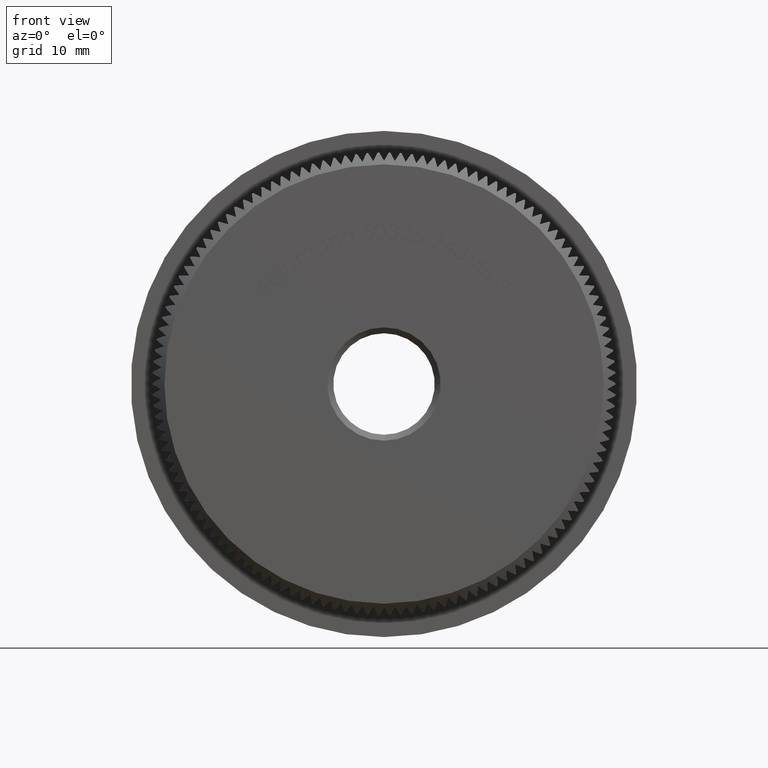
[diagram: clean part render]
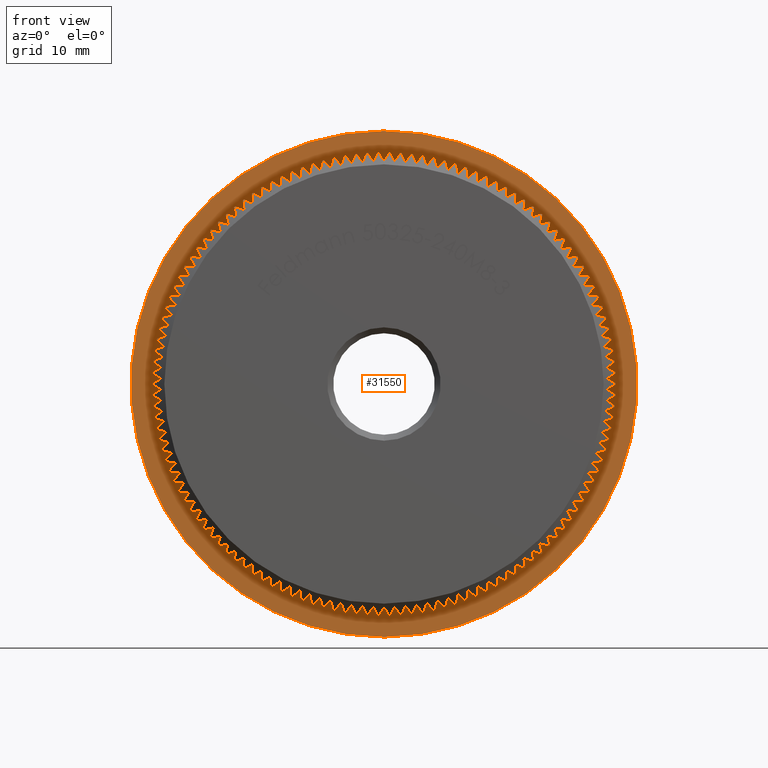
[diagram: same view with one face highlighted and labeled with its STEP entity id]
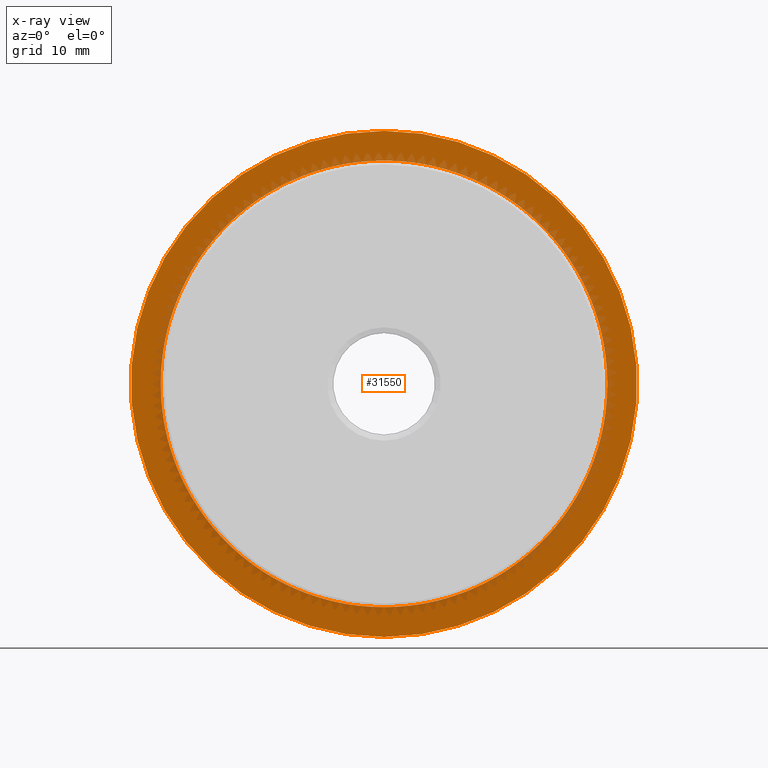
[diagram: x-ray of the same camera — body ghosted, the highlighted face saturated]
A machine part, front view. The second image highlights one B-rep face of the part: STEP entity #31550.
The next image is the same camera in x-ray: the body ghosted, the highlighted face saturated — about 15% of this face is hidden behind the body in this view.
In plain terms, the highlighted planar face has unit normal (0, -1, -0).
Its self-contained STEP definition (entity closure, byte-faithful):
#30 = EDGE_CURVE ( 'NONE', #24244, #6356, #12986, .T. ) ;
#55 = CARTESIAN_POINT ( 'NONE',  ( 0.0000000000000000000, 8.000000000000001800, 0.0000000000000000000 ) ) ;
#68 = EDGE_CURVE ( 'NONE', #5762, #26511, #26739, .T. ) ;
#90 = CIRCLE ( 'NONE', #12672, 18.69999999999999600 ) ;
#97 = DIRECTION ( 'NONE',  ( -0.0000000000000000000, -1.000000000000000000, -0.0000000000000000000 ) ) ;
#119 = AXIS2_PLACEMENT_3D ( 'NONE', #2781, #15537, #7982 ) ;
#120 = CARTESIAN_POINT ( 'NONE',  ( 0.0000000000000000000, 8.000000000000001800, 0.0000000000000000000 ) ) ;
#125 = AXIS2_PLACEMENT_3D ( 'NONE', #20582, #30480, #20148 ) ;
#204 = DIRECTION ( 'NONE',  ( 0.0000000000000000000, 0.0000000000000000000, -1.000000000000000000 ) ) ;
#212 = CARTESIAN_POINT ( 'NONE',  ( -15.38979829221139200, 8.000000000000001800, 10.62281076387257700 ) ) ;
#223 = CIRCLE ( 'NONE', #17657, 18.69999999999999600 ) ;
#229 = DIRECTION ( 'NONE',  ( 0.0000000000000000000, 0.0000000000000000000, -1.000000000000000000 ) ) ;
#231 = CARTESIAN_POINT ( 'NONE',  ( -4.475202922177339300, 7.999999999999998200, 18.15661198586716600 ) ) ;
#262 = CIRCLE ( 'NONE', #20604, 18.69999999999999600 ) ;
#332 = ORIENTED_EDGE ( 'NONE', *, *, #13939, .F. ) ;
#357 = CARTESIAN_POINT ( 'NONE',  ( 17.14401405241999800, 8.000000000000005300, 7.468117712678703900 ) ) ;
#358 = EDGE_CURVE ( 'NONE', #14087, #10735, #19717, .T. ) ;
#377 = DIRECTION ( 'NONE',  ( 0.0000000000000000000, 0.0000000000000000000, -1.000000000000000000 ) ) ;
#390 = CARTESIAN_POINT ( 'NONE',  ( 0.0000000000000000000, 8.000000000000001800, 0.0000000000000000000 ) ) ;
#394 = DIRECTION ( 'NONE',  ( 0.0000000000000000000, 0.0000000000000000000, -1.000000000000000000 ) ) ;
#479 = CARTESIAN_POINT ( 'NONE',  ( -14.85860261064722300, 8.000000000000005300, 11.35393889620986700 ) ) ;
#503 = ORIENTED_EDGE ( 'NONE', *, *, #30619, .F. ) ;
#511 = ORIENTED_EDGE ( 'NONE', *, *, #2688, .F. ) ;
#539 = VERTEX_POINT ( 'NONE', #13916 ) ;
#556 = CARTESIAN_POINT ( 'NONE',  ( 0.0000000000000000000, 8.000000000000001800, 0.0000000000000000000 ) ) ;
#587 = EDGE_CURVE ( 'NONE', #10735, #17162, #28354, .T. ) ;
#600 = AXIS2_PLACEMENT_3D ( 'NONE', #120, #27979, #229 ) ;
#623 = DIRECTION ( 'NONE',  ( -0.0000000000000000000, -1.000000000000000000, -0.0000000000000000000 ) ) ;
#641 = CIRCLE ( 'NONE', #16943, 18.69999999999999600 ) ;
#644 = AXIS2_PLACEMENT_3D ( 'NONE', #3396, #26251, #23733 ) ;
#648 = EDGE_CURVE ( 'NONE', #32255, #14641, #29177, .T. ) ;
#677 = EDGE_CURVE ( 'NONE', #14396, #30120, #8311, .T. ) ;
#689 = CIRCLE ( 'NONE', #26870, 18.69999999999999600 ) ;
#761 = VERTEX_POINT ( 'NONE', #28118 ) ;
#764 = ORIENTED_EDGE ( 'NONE', *, *, #3606, .F. ) ;
#783 = VERTEX_POINT ( 'NONE', #20430 ) ;
#789 = CARTESIAN_POINT ( 'NONE',  ( 6.206676853503251900, 7.999999999999986700, 17.63993090791987600 ) ) ;
#804 = DIRECTION ( 'NONE',  ( 0.0000000000000000000, 0.0000000000000000000, -1.000000000000000000 ) ) ;
#831 = ORIENTED_EDGE ( 'NONE', *, *, #6894, .F. ) ;
#835 = EDGE_CURVE ( 'NONE', #17367, #20957, #3964, .T. ) ;
#836 = VERTEX_POINT ( 'NONE', #28667 ) ;
#876 = CARTESIAN_POINT ( 'NONE',  ( -18.56365594563361300, 8.000000000000001800, 2.254035920774482000 ) ) ;
#882 = AXIS2_PLACEMENT_3D ( 'NONE', #18391, #15740, #3846 ) ;
#937 = AXIS2_PLACEMENT_3D ( 'NONE', #19604, #22118, #6720 ) ;
#940 = CARTESIAN_POINT ( 'NONE',  ( 9.480149266314267500, 7.999999999999998200, -16.11883277065684100 ) ) ;
#956 = CIRCLE ( 'NONE', #7296, 18.69999999999999600 ) ;
#980 = CARTESIAN_POINT ( 'NONE',  ( 18.43307771342189800, 8.000000000000001800, -3.148276673189435800 ) ) ;
#984 = AXIS2_PLACEMENT_3D ( 'NONE', #5621, #21263, #5414 ) ;
#1000 = CARTESIAN_POINT ( 'NONE',  ( 0.0000000000000000000, 8.000000000000001800, 0.0000000000000000000 ) ) ;
#1060 = DIRECTION ( 'NONE',  ( 0.0000000000000000000, 0.0000000000000000000, -1.000000000000000000 ) ) ;
#1081 = CIRCLE ( 'NONE', #7534, 18.69999999999999600 ) ;
#1091 = AXIS2_PLACEMENT_3D ( 'NONE', #19262, #14706, #4172 ) ;
#1129 = EDGE_CURVE ( 'NONE', #16881, #32402, #22476, .T. ) ;
#1195 = CARTESIAN_POINT ( 'NONE',  ( 10.24783388753245300, 8.000000000000001800, -15.64199158079115300 ) ) ;
#1218 = VERTEX_POINT ( 'NONE', #212 ) ;
#1220 = CARTESIAN_POINT ( 'NONE',  ( 0.0000000000000000000, 8.000000000000001800, 0.0000000000000000000 ) ) ;
#1247 = VERTEX_POINT ( 'NONE', #17523 ) ;
#1255 = DIRECTION ( 'NONE',  ( -0.0000000000000000000, -1.000000000000000000, -0.0000000000000000000 ) ) ;
#1295 = ORIENTED_EDGE ( 'NONE', *, *, #30814, .F. ) ;
#1333 = DIRECTION ( 'NONE',  ( -0.0000000000000000000, -1.000000000000000000, -0.0000000000000000000 ) ) ;
#1355 = CARTESIAN_POINT ( 'NONE',  ( 0.0000000000000000000, 8.000000000000001800, 0.0000000000000000000 ) ) ;
#1398 = DIRECTION ( 'NONE',  ( -0.0000000000000000000, -1.000000000000000000, -0.0000000000000000000 ) ) ;
#1417 = DIRECTION ( 'NONE',  ( -0.0000000000000000000, -1.000000000000000000, -0.0000000000000000000 ) ) ;
#1440 = DIRECTION ( 'NONE',  ( -0.0000000000000000000, -1.000000000000000000, -0.0000000000000000000 ) ) ;
#1462 = CARTESIAN_POINT ( 'NONE',  ( 0.0000000000000000000, 8.000000000000001800, 0.0000000000000000000 ) ) ;
#1481 = CIRCLE ( 'NONE', #29598, 18.69999999999999600 ) ;
#1489 = CIRCLE ( 'NONE', #9206, 18.69999999999999600 ) ;
#1517 = VERTEX_POINT ( 'NONE', #26700 ) ;
#1523 = EDGE_CURVE ( 'NONE', #6623, #25923, #13769, .T. ) ;
#1578 = AXIS2_PLACEMENT_3D ( 'NONE', #28720, #623, #1060 ) ;
#1688 = DIRECTION ( 'NONE',  ( 0.0000000000000000000, 0.0000000000000000000, -1.000000000000000000 ) ) ;
#1692 = CARTESIAN_POINT ( 'NONE',  ( 0.9034601971271151200, 7.999999999999992900, -18.67816264176449800 ) ) ;
#1717 = DIRECTION ( 'NONE',  ( 0.0000000000000000000, 0.0000000000000000000, -1.000000000000000000 ) ) ;
#1725 = CARTESIAN_POINT ( 'NONE',  ( 1.804810321101567100, 8.000000000000001800, -18.61270156922001100 ) ) ;
#1740 = DIRECTION ( 'NONE',  ( -0.0000000000000000000, -1.000000000000000000, -0.0000000000000000000 ) ) ;
#1808 = CIRCLE ( 'NONE', #7971, 18.69999999999999600 ) ;
#1809 = CARTESIAN_POINT ( 'NONE',  ( 0.0000000000000000000, 8.000000000000001800, 0.0000000000000000000 ) ) ;
#1861 = CARTESIAN_POINT ( 'NONE',  ( 0.0000000000000000000, 8.000000000000001800, 0.0000000000000000000 ) ) ;
#1892 = CARTESIAN_POINT ( 'NONE',  ( 0.0000000000000000000, 8.000000000000001800, 0.0000000000000000000 ) ) ;
#1900 = VERTEX_POINT ( 'NONE', #16685 ) ;
#1914 = DIRECTION ( 'NONE',  ( -0.0000000000000000000, -1.000000000000000000, -0.0000000000000000000 ) ) ;
#1918 = DIRECTION ( 'NONE',  ( -0.0000000000000000000, -1.000000000000000000, -0.0000000000000000000 ) ) ;
#1963 = CARTESIAN_POINT ( 'NONE',  ( -3.592769614514354200, 7.999999999999989300, 18.35162135880702600 ) ) ;
#1971 = AXIS2_PLACEMENT_3D ( 'NONE', #55, #10321, #5156 ) ;
#1998 = CARTESIAN_POINT ( 'NONE',  ( -18.69453986329960700, 7.999999999999998200, 0.4518620359156096400 ) ) ;
#2013 = AXIS2_PLACEMENT_3D ( 'NONE', #19545, #14657, #9419 ) ;
#2049 = VERTEX_POINT ( 'NONE', #9647 ) ;
#2128 = CARTESIAN_POINT ( 'NONE',  ( 0.0000000000000000000, 8.000000000000001800, 0.0000000000000000000 ) ) ;
#2261 = ORIENTED_EDGE ( 'NONE', *, *, #30857, .F. ) ;
#2268 = ORIENTED_EDGE ( 'NONE', *, *, #10183, .F. ) ;
#2280 = DIRECTION ( 'NONE',  ( 0.0000000000000000000, 0.0000000000000000000, -1.000000000000000000 ) ) ;
#2417 = DIRECTION ( 'NONE',  ( -0.0000000000000000000, -1.000000000000000000, -0.0000000000000000000 ) ) ;
#2421 = DIRECTION ( 'NONE',  ( -0.0000000000000000000, -1.000000000000000000, -0.0000000000000000000 ) ) ;
#2450 = CARTESIAN_POINT ( 'NONE',  ( 0.0000000000000000000, 8.000000000000001800, 0.0000000000000000000 ) ) ;
#2520 = ORIENTED_EDGE ( 'NONE', *, *, #15793, .T. ) ;
#2549 = AXIS2_PLACEMENT_3D ( 'NONE', #14859, #22247, #9719 ) ;
#2553 = CIRCLE ( 'NONE', #4550, 18.69999999999999600 ) ;
#2556 = CARTESIAN_POINT ( 'NONE',  ( -11.70966319396648500, 7.999999999999998200, 14.57991042098223900 ) ) ;
#2568 = DIRECTION ( 'NONE',  ( -0.0000000000000000000, -1.000000000000000000, -0.0000000000000000000 ) ) ;
#2608 = CARTESIAN_POINT ( 'NONE',  ( 0.0000000000000000000, 8.000000000000001800, 0.0000000000000000000 ) ) ;
#2654 = CARTESIAN_POINT ( 'NONE',  ( 0.0000000000000000000, 8.000000000000001800, 0.0000000000000000000 ) ) ;
#2657 = CIRCLE ( 'NONE', #3241, 18.69999999999999600 ) ;
#2669 = ORIENTED_EDGE ( 'NONE', *, *, #25084, .F. ) ;
#2676 = CARTESIAN_POINT ( 'NONE',  ( 0.0000000000000000000, 8.000000000000001800, 0.0000000000000000000 ) ) ;
#2684 = DIRECTION ( 'NONE',  ( -0.0000000000000000000, -1.000000000000000000, -0.0000000000000000000 ) ) ;
#2685 = CARTESIAN_POINT ( 'NONE',  ( -1.804810321101436100, 8.000000000000001800, 18.61270156922002500 ) ) ;
#2688 = EDGE_CURVE ( 'NONE', #8514, #5762, #18846, .T. ) ;
#2699 = DIRECTION ( 'NONE',  ( -0.0000000000000000000, -1.000000000000000000, -0.0000000000000000000 ) ) ;
#2779 = DIRECTION ( 'NONE',  ( -0.0000000000000000000, -1.000000000000000000, -0.0000000000000000000 ) ) ;
#2781 = CARTESIAN_POINT ( 'NONE',  ( 0.0000000000000000000, 8.000000000000001800, 0.0000000000000000000 ) ) ;
#2822 = EDGE_CURVE ( 'NONE', #9072, #27594, #28714, .T. ) ;
#2826 = EDGE_CURVE ( 'NONE', #19145, #21549, #9421, .T. ) ;
#2828 = EDGE_CURVE ( 'NONE', #20333, #17367, #19268, .T. ) ;
#2833 = AXIS2_PLACEMENT_3D ( 'NONE', #25900, #13464, #15912 ) ;
#2879 = CARTESIAN_POINT ( 'NONE',  ( 15.88505038677252500, 8.000000000000005300, -9.866872564784536300 ) ) ;
#2889 = CIRCLE ( 'NONE', #8016, 18.69999999999999600 ) ;
#2906 = DIRECTION ( 'NONE',  ( -0.0000000000000000000, -1.000000000000000000, -0.0000000000000000000 ) ) ;
#2939 = ORIENTED_EDGE ( 'NONE', *, *, #8827, .F. ) ;
#2943 = VERTEX_POINT ( 'NONE', #30978 ) ;
#2963 = CARTESIAN_POINT ( 'NONE',  ( 0.0000000000000000000, 8.000000000000001800, 0.0000000000000000000 ) ) ;
#3008 = ORIENTED_EDGE ( 'NONE', *, *, #26466, .F. ) ;
#3024 = AXIS2_PLACEMENT_3D ( 'NONE', #26210, #16226, #29105 ) ;
#3026 = CARTESIAN_POINT ( 'NONE',  ( -6.206676853503492600, 8.000000000000001800, 17.63993090791978700 ) ) ;
#3033 = DIRECTION ( 'NONE',  ( 0.0000000000000000000, 0.0000000000000000000, -1.000000000000000000 ) ) ;
#3044 = ORIENTED_EDGE ( 'NONE', *, *, #4147, .F. ) ;
#3056 = VERTEX_POINT ( 'NONE', #11360 ) ;
#3138 = DIRECTION ( 'NONE',  ( 0.0000000000000000000, 0.0000000000000000000, -1.000000000000000000 ) ) ;
#3148 = CARTESIAN_POINT ( 'NONE',  ( 0.0000000000000000000, 8.000000000000001800, 0.0000000000000000000 ) ) ;
#3190 = ORIENTED_EDGE ( 'NONE', *, *, #648, .F. ) ;
#3191 = CARTESIAN_POINT ( 'NONE',  ( 0.0000000000000000000, 8.000000000000001800, 0.0000000000000000000 ) ) ;
#3213 = CARTESIAN_POINT ( 'NONE',  ( 0.0000000000000000000, 8.000000000000000000, 0.0000000000000000000 ) ) ;
#3241 = AXIS2_PLACEMENT_3D ( 'NONE', #31024, #5933, #23513 ) ;
#3301 = ORIENTED_EDGE ( 'NONE', *, *, #28345, .F. ) ;
#3308 = ORIENTED_EDGE ( 'NONE', *, *, #23863, .F. ) ;
#3327 = EDGE_CURVE ( 'NONE', #3056, #26719, #28681, .T. ) ;
#3348 = CARTESIAN_POINT ( 'NONE',  ( 14.29270397420722100, 7.999999999999998200, 12.05854937816655200 ) ) ;
#3358 = CIRCLE ( 'NONE', #16829, 18.69999999999999600 ) ;
#3359 = EDGE_CURVE ( 'NONE', #9605, #26074, #689, .T. ) ;
#3383 = CARTESIAN_POINT ( 'NONE',  ( 0.0000000000000000000, 8.000000000000001800, 0.0000000000000000000 ) ) ;
#3396 = CARTESIAN_POINT ( 'NONE',  ( 0.0000000000000000000, 8.000000000000001800, 0.0000000000000000000 ) ) ;
#3408 = EDGE_CURVE ( 'NONE', #19272, #31898, #22749, .T. ) ;
#3412 = CARTESIAN_POINT ( 'NONE',  ( 0.0000000000000000000, 8.000000000000001800, 18.69999999999999600 ) ) ;
#3422 = AXIS2_PLACEMENT_3D ( 'NONE', #7109, #16898, #32193 ) ;
#3428 = DIRECTION ( 'NONE',  ( 0.0000000000000000000, 0.0000000000000000000, -1.000000000000000000 ) ) ;
#3449 = DIRECTION ( 'NONE',  ( 0.0000000000000000000, 0.0000000000000000000, -1.000000000000000000 ) ) ;
#3464 = CARTESIAN_POINT ( 'NONE',  ( 17.14401405242015700, 7.999999999999998200, -7.468117712678344200 ) ) ;
#3481 = ORIENTED_EDGE ( 'NONE', *, *, #23014, .F. ) ;
#3494 = ORIENTED_EDGE ( 'NONE', *, *, #12608, .F. ) ;
#3547 = EDGE_CURVE ( 'NONE', #17162, #8493, #8215, .T. ) ;
#3583 = DIRECTION ( 'NONE',  ( -0.0000000000000000000, -1.000000000000000000, -0.0000000000000000000 ) ) ;
#3606 = EDGE_CURVE ( 'NONE', #3855, #19272, #1489, .T. ) ;
#3614 = CARTESIAN_POINT ( 'NONE',  ( -18.43307771342188100, 7.999999999999986700, 3.148276673189565100 ) ) ;
#3619 = EDGE_CURVE ( 'NONE', #32283, #28875, #15263, .T. ) ;
#3683 = DIRECTION ( 'NONE',  ( 0.0000000000000000000, 0.0000000000000000000, -1.000000000000000000 ) ) ;
#3706 = EDGE_CURVE ( 'NONE', #17749, #26657, #7426, .T. ) ;
#3716 = DIRECTION ( 'NONE',  ( 0.0000000000000000000, 0.0000000000000000000, -1.000000000000000000 ) ) ;
#3782 = CARTESIAN_POINT ( 'NONE',  ( 0.0000000000000000000, 8.000000000000001800, 0.0000000000000000000 ) ) ;
#3793 = CARTESIAN_POINT ( 'NONE',  ( -3.592769614514227200, 8.000000000000001800, -18.35162135880704800 ) ) ;
#3841 = CIRCLE ( 'NONE', #27318, 18.69999999999999600 ) ;
#3842 = CARTESIAN_POINT ( 'NONE',  ( 0.0000000000000000000, 8.000000000000001800, 0.0000000000000000000 ) ) ;
#3846 = DIRECTION ( 'NONE',  ( 0.0000000000000000000, 0.0000000000000000000, -1.000000000000000000 ) ) ;
#3854 = CARTESIAN_POINT ( 'NONE',  ( 0.0000000000000000000, 8.000000000000001800, 0.0000000000000000000 ) ) ;
#3855 = VERTEX_POINT ( 'NONE', #16090 ) ;
#3894 = AXIS2_PLACEMENT_3D ( 'NONE', #8313, #10825, #23038 ) ;
#3896 = CIRCLE ( 'NONE', #26183, 18.69999999999999600 ) ;
#3927 = VERTEX_POINT ( 'NONE', #10917 ) ;
#3964 = CIRCLE ( 'NONE', #17372, 18.69999999999999600 ) ;
#3985 = ORIENTED_EDGE ( 'NONE', *, *, #24096, .F. ) ;
#4038 = AXIS2_PLACEMENT_3D ( 'NONE', #26338, #23489, #18570 ) ;
#4088 = CARTESIAN_POINT ( 'NONE',  ( 0.0000000000000000000, 8.000000000000001800, 0.0000000000000000000 ) ) ;
#4118 = DIRECTION ( 'NONE',  ( 0.0000000000000000000, 0.0000000000000000000, -1.000000000000000000 ) ) ;
#4121 = CARTESIAN_POINT ( 'NONE',  ( -11.70966319396638200, 8.000000000000005300, -14.57991042098231700 ) ) ;
#4147 = EDGE_CURVE ( 'NONE', #27248, #19862, #1081, .T. ) ;
#4172 = DIRECTION ( 'NONE',  ( 0.0000000000000000000, 0.0000000000000000000, -1.000000000000000000 ) ) ;
#4243 = AXIS2_PLACEMENT_3D ( 'NONE', #6448, #13788, #16447 ) ;
#4248 = DIRECTION ( 'NONE',  ( 0.0000000000000000000, 0.0000000000000000000, -1.000000000000000000 ) ) ;
#4250 = DIRECTION ( 'NONE',  ( -0.0000000000000000000, -1.000000000000000000, -0.0000000000000000000 ) ) ;
#4265 = CARTESIAN_POINT ( 'NONE',  ( -18.25944817410739400, 8.000000000000001800, 4.035164479557921300 ) ) ;
#4268 = DIRECTION ( 'NONE',  ( -0.0000000000000000000, -1.000000000000000000, -0.0000000000000000000 ) ) ;
#4279 = DIRECTION ( 'NONE',  ( -0.0000000000000000000, -1.000000000000000000, -0.0000000000000000000 ) ) ;
#4344 = EDGE_CURVE ( 'NONE', #28855, #783, #3841, .T. ) ;
#4354 = DIRECTION ( 'NONE',  ( -0.0000000000000000000, -1.000000000000000000, -0.0000000000000000000 ) ) ;
#4386 = CARTESIAN_POINT ( 'NONE',  ( 0.0000000000000000000, 8.000000000000000000, 0.0000000000000000000 ) ) ;
#4401 = DIRECTION ( 'NONE',  ( 0.0000000000000000000, 0.0000000000000000000, -1.000000000000000000 ) ) ;
#4406 = EDGE_CURVE ( 'NONE', #4839, #8514, #11293, .T. ) ;
#4415 = VERTEX_POINT ( 'NONE', #1725 ) ;
#4449 = CIRCLE ( 'NONE', #4691, 18.69999999999999600 ) ;
#4501 = AXIS2_PLACEMENT_3D ( 'NONE', #1462, #16445, #31959 ) ;
#4509 = CIRCLE ( 'NONE', #6712, 18.69999999999999600 ) ;
#4545 = AXIS2_PLACEMENT_3D ( 'NONE', #12165, #26914, #17045 ) ;
#4550 = AXIS2_PLACEMENT_3D ( 'NONE', #1892, #29423, #19313 ) ;
#4569 = DIRECTION ( 'NONE',  ( 0.0000000000000000000, 0.0000000000000000000, -1.000000000000000000 ) ) ;
#4570 = DIRECTION ( 'NONE',  ( 0.0000000000000000000, 0.0000000000000000000, -1.000000000000000000 ) ) ;
#4620 = CARTESIAN_POINT ( 'NONE',  ( -14.29270397420738300, 7.999999999999998200, 12.05854937816636000 ) ) ;
#4659 = ORIENTED_EDGE ( 'NONE', *, *, #28293, .F. ) ;
#4663 = ORIENTED_EDGE ( 'NONE', *, *, #5448, .F. ) ;
#4691 = AXIS2_PLACEMENT_3D ( 'NONE', #3842, #6388, #6501 ) ;
#4706 = CIRCLE ( 'NONE', #19492, 18.69999999999999600 ) ;
#4719 = EDGE_CURVE ( 'NONE', #12626, #30348, #262, .T. ) ;
#4746 = DIRECTION ( 'NONE',  ( -0.0000000000000000000, -1.000000000000000000, -0.0000000000000000000 ) ) ;
#4788 = DIRECTION ( 'NONE',  ( -0.0000000000000000000, -1.000000000000000000, -0.0000000000000000000 ) ) ;
#4813 = DIRECTION ( 'NONE',  ( 0.0000000000000000000, 0.0000000000000000000, -1.000000000000000000 ) ) ;
#4822 = VERTEX_POINT ( 'NONE', #27441 ) ;
#4839 = VERTEX_POINT ( 'NONE', #32427 ) ;
#4856 = CIRCLE ( 'NONE', #14789, 18.69999999999999600 ) ;
#4880 = EDGE_CURVE ( 'NONE', #7200, #7527, #18784, .T. ) ;
#4898 = ORIENTED_EDGE ( 'NONE', *, *, #32553, .F. ) ;
#4937 = AXIS2_PLACEMENT_3D ( 'NONE', #19431, #4354, #1688 ) ;
#4947 = CIRCLE ( 'NONE', #22927, 18.69999999999999600 ) ;
#4985 = AXIS2_PLACEMENT_3D ( 'NONE', #15920, #31228, #26017 ) ;
#5027 = CARTESIAN_POINT ( 'NONE',  ( 0.0000000000000000000, 8.000000000000001800, 0.0000000000000000000 ) ) ;
#5033 = ORIENTED_EDGE ( 'NONE', *, *, #21406, .F. ) ;
#5040 = CARTESIAN_POINT ( 'NONE',  ( 0.0000000000000000000, 8.000000000000001800, 0.0000000000000000000 ) ) ;
#5066 = EDGE_CURVE ( 'NONE', #31898, #13722, #25035, .T. ) ;
#5094 = CARTESIAN_POINT ( 'NONE',  ( 0.0000000000000000000, 8.000000000000001800, 0.0000000000000000000 ) ) ;
#5118 = CARTESIAN_POINT ( 'NONE',  ( 6.206676853503619600, 8.000000000000001800, -17.63993090791974100 ) ) ;
#5134 = CIRCLE ( 'NONE', #12277, 18.69999999999999600 ) ;
#5156 = DIRECTION ( 'NONE',  ( 0.0000000000000000000, 0.0000000000000000000, -1.000000000000000000 ) ) ;
#5193 = DIRECTION ( 'NONE',  ( -0.0000000000000000000, -1.000000000000000000, -0.0000000000000000000 ) ) ;
#5202 = DIRECTION ( 'NONE',  ( 0.0000000000000000000, 0.0000000000000000000, -1.000000000000000000 ) ) ;
#5333 = VERTEX_POINT ( 'NONE', #25212 ) ;
#5390 = VERTEX_POINT ( 'NONE', #5118 ) ;
#5414 = DIRECTION ( 'NONE',  ( 0.0000000000000000000, 0.0000000000000000000, -1.000000000000000000 ) ) ;
#5448 = EDGE_CURVE ( 'NONE', #19855, #9072, #16010, .T. ) ;
#5466 = DIRECTION ( 'NONE',  ( -0.0000000000000000000, -1.000000000000000000, -0.0000000000000000000 ) ) ;
#5467 = PLANE ( 'NONE',  #23269 ) ;
#5493 = ORIENTED_EDGE ( 'NONE', *, *, #3547, .F. ) ;
#5501 = AXIS2_PLACEMENT_3D ( 'NONE', #27650, #22585, #7541 ) ;
#5560 = AXIS2_PLACEMENT_3D ( 'NONE', #556, #20736, #25968 ) ;
#5568 = ORIENTED_EDGE ( 'NONE', *, *, #15497, .F. ) ;
#5602 = ORIENTED_EDGE ( 'NONE', *, *, #7870, .F. ) ;
#5621 = CARTESIAN_POINT ( 'NONE',  ( 0.0000000000000000000, 8.000000000000001800, 0.0000000000000000000 ) ) ;
#5679 = DIRECTION ( 'NONE',  ( 0.0000000000000000000, 0.0000000000000000000, -1.000000000000000000 ) ) ;
#5714 = VERTEX_POINT ( 'NONE', #14178 ) ;
#5745 = ORIENTED_EDGE ( 'NONE', *, *, #29555, .T. ) ;
#5762 = VERTEX_POINT ( 'NONE', #9502 ) ;
#5825 = DIRECTION ( 'NONE',  ( 0.0000000000000000000, 0.0000000000000000000, -1.000000000000000000 ) ) ;
#5832 = EDGE_CURVE ( 'NONE', #761, #15237, #15565, .T. ) ;
#5849 = ORIENTED_EDGE ( 'NONE', *, *, #3706, .F. ) ;
#5857 = CIRCLE ( 'NONE', #1578, 18.69999999999999600 ) ;
#5859 = CARTESIAN_POINT ( 'NONE',  ( -14.29270397420729900, 7.999999999999998200, -12.05854937816645900 ) ) ;
#5887 = VERTEX_POINT ( 'NONE', #25060 ) ;
#5894 = DIRECTION ( 'NONE',  ( 0.0000000000000000000, 0.0000000000000000000, -1.000000000000000000 ) ) ;
#5933 = DIRECTION ( 'NONE',  ( -0.0000000000000000000, -1.000000000000000000, -0.0000000000000000000 ) ) ;
#5984 = CARTESIAN_POINT ( 'NONE',  ( 8.690323317218601000, 8.000000000000005300, -16.55802767971495000 ) ) ;
#6047 = DIRECTION ( 'NONE',  ( -0.0000000000000000000, -1.000000000000000000, -0.0000000000000000000 ) ) ;
#6078 = DIRECTION ( 'NONE',  ( -0.0000000000000000000, -1.000000000000000000, -0.0000000000000000000 ) ) ;
#6090 = DIRECTION ( 'NONE',  ( -0.0000000000000000000, -1.000000000000000000, -0.0000000000000000000 ) ) ;
#6099 = CARTESIAN_POINT ( 'NONE',  ( 4.475202922177087000, 7.999999999999998200, 18.15661198586722900 ) ) ;
#6116 = CARTESIAN_POINT ( 'NONE',  ( -12.40039370910288800, 8.000000000000001800, 13.99715099079956800 ) ) ;
#6130 = AXIS2_PLACEMENT_3D ( 'NONE', #13989, #13676, #11481 ) ;
#6174 = AXIS2_PLACEMENT_3D ( 'NONE', #14661, #32529, #17441 ) ;
#6178 = EDGE_CURVE ( 'NONE', #5887, #30354, #20336, .T. ) ;
#6198 = DIRECTION ( 'NONE',  ( 0.0000000000000000000, 0.0000000000000000000, -1.000000000000000000 ) ) ;
#6229 = VERTEX_POINT ( 'NONE', #20002 ) ;
#6234 = CARTESIAN_POINT ( 'NONE',  ( 0.0000000000000000000, 8.000000000000001800, 0.0000000000000000000 ) ) ;
#6265 = CARTESIAN_POINT ( 'NONE',  ( 0.0000000000000000000, 8.000000000000001800, 0.0000000000000000000 ) ) ;
#6275 = DIRECTION ( 'NONE',  ( 0.0000000000000000000, 0.0000000000000000000, -1.000000000000000000 ) ) ;
#6335 = CARTESIAN_POINT ( 'NONE',  ( 0.0000000000000000000, 8.000000000000001800, 0.0000000000000000000 ) ) ;
#6356 = VERTEX_POINT ( 'NONE', #23028 ) ;
#6360 = DIRECTION ( 'NONE',  ( -0.0000000000000000000, -1.000000000000000000, -0.0000000000000000000 ) ) ;
#6388 = DIRECTION ( 'NONE',  ( -0.0000000000000000000, -1.000000000000000000, -0.0000000000000000000 ) ) ;
#6392 = ORIENTED_EDGE ( 'NONE', *, *, #15903, .F. ) ;
#6422 = EDGE_CURVE ( 'NONE', #20761, #3927, #9281, .T. ) ;
#6423 = AXIS2_PLACEMENT_3D ( 'NONE', #17385, #24710, #2280 ) ;
#6448 = CARTESIAN_POINT ( 'NONE',  ( 0.0000000000000000000, 8.000000000000001800, 0.0000000000000000000 ) ) ;
#6471 = CARTESIAN_POINT ( 'NONE',  ( 0.0000000000000000000, 8.000000000000001800, 0.0000000000000000000 ) ) ;
#6486 = ORIENTED_EDGE ( 'NONE', *, *, #23406, .F. ) ;
#6495 = CIRCLE ( 'NONE', #11549, 18.69999999999999600 ) ;
#6501 = DIRECTION ( 'NONE',  ( 0.0000000000000000000, 0.0000000000000000000, -1.000000000000000000 ) ) ;
#6531 = CARTESIAN_POINT ( 'NONE',  ( -15.38979829221131900, 8.000000000000001800, -10.62281076387268400 ) ) ;
#6546 = ORIENTED_EDGE ( 'NONE', *, *, #22638, .F. ) ;
#6568 = EDGE_CURVE ( 'NONE', #11546, #24244, #3358, .T. ) ;
#6571 = CIRCLE ( 'NONE', #14324, 18.69999999999999600 ) ;
#6573 = AXIS2_PLACEMENT_3D ( 'NONE', #13654, #1333, #21184 ) ;
#6611 = AXIS2_PLACEMENT_3D ( 'NONE', #16716, #4279, #14040 ) ;
#6623 = VERTEX_POINT ( 'NONE', #1998 ) ;
#6678 = DIRECTION ( 'NONE',  ( 0.0000000000000000000, 0.0000000000000000000, -1.000000000000000000 ) ) ;
#6712 = AXIS2_PLACEMENT_3D ( 'NONE', #2654, #10258, #27742 ) ;
#6720 = DIRECTION ( 'NONE',  ( 0.0000000000000000000, 0.0000000000000000000, -1.000000000000000000 ) ) ;
#6804 = VERTEX_POINT ( 'NONE', #30607 ) ;
#6818 = AXIS2_PLACEMENT_3D ( 'NONE', #27077, #19290, #12004 ) ;
#6894 = EDGE_CURVE ( 'NONE', #17395, #30275, #31730, .T. ) ;
#6916 = CARTESIAN_POINT ( 'NONE',  ( -9.480149266314041900, 8.000000000000001800, -16.11883277065697200 ) ) ;
#7003 = EDGE_CURVE ( 'NONE', #27594, #2943, #23787, .T. ) ;
#7009 = CIRCLE ( 'NONE', #21838, 21.19999999999999900 ) ;
#7034 = EDGE_CURVE ( 'NONE', #26657, #5333, #12783, .T. ) ;
#7038 = EDGE_CURVE ( 'NONE', #31135, #17737, #4947, .T. ) ;
#7051 = AXIS2_PLACEMENT_3D ( 'NONE', #15466, #23369, #5894 ) ;
#7109 = CARTESIAN_POINT ( 'NONE',  ( 0.0000000000000000000, 8.000000000000001800, 0.0000000000000000000 ) ) ;
#7138 = ORIENTED_EDGE ( 'NONE', *, *, #7483, .F. ) ;
#7168 = ORIENTED_EDGE ( 'NONE', *, *, #1523, .F. ) ;
#7191 = VERTEX_POINT ( 'NONE', #20138 ) ;
#7200 = VERTEX_POINT ( 'NONE', #7907 ) ;
#7296 = AXIS2_PLACEMENT_3D ( 'NONE', #27643, #20082, #22477 ) ;
#7426 = CIRCLE ( 'NONE', #19979, 18.69999999999999600 ) ;
#7478 = ORIENTED_EDGE ( 'NONE', *, *, #11314, .F. ) ;
#7483 = EDGE_CURVE ( 'NONE', #14019, #23184, #15154, .T. ) ;
#7527 = VERTEX_POINT ( 'NONE', #4121 ) ;
#7534 = AXIS2_PLACEMENT_3D ( 'NONE', #12535, #15390, #10136 ) ;
#7538 = CARTESIAN_POINT ( 'NONE',  ( 0.0000000000000000000, 8.000000000000001800, 0.0000000000000000000 ) ) ;
#7541 = DIRECTION ( 'NONE',  ( 0.0000000000000000000, 0.0000000000000000000, -1.000000000000000000 ) ) ;
#7616 = VERTEX_POINT ( 'NONE', #11568 ) ;
#7643 = DIRECTION ( 'NONE',  ( 0.0000000000000000000, 0.0000000000000000000, -1.000000000000000000 ) ) ;
#7648 = CARTESIAN_POINT ( 'NONE',  ( 18.65087789923086300, 8.000000000000005300, 1.354530763025154800 ) ) ;
#7702 = VERTEX_POINT ( 'NONE', #6531 ) ;
#7772 = EDGE_CURVE ( 'NONE', #13073, #5887, #17513, .T. ) ;
#7870 = EDGE_CURVE ( 'NONE', #18960, #5390, #6495, .T. ) ;
#7887 = DIRECTION ( 'NONE',  ( -0.0000000000000000000, -1.000000000000000000, -0.0000000000000000000 ) ) ;
#7889 = CARTESIAN_POINT ( 'NONE',  ( 4.475202922177468100, 7.999999999999998200, -18.15661198586713400 ) ) ;
#7890 = ORIENTED_EDGE ( 'NONE', *, *, #20217, .F. ) ;
#7907 = CARTESIAN_POINT ( 'NONE',  ( -12.40039370910279200, 8.000000000000001800, -13.99715099079965200 ) ) ;
#7915 = ORIENTED_EDGE ( 'NONE', *, *, #32463, .F. ) ;
#7971 = AXIS2_PLACEMENT_3D ( 'NONE', #6471, #6360, #26556 ) ;
#7982 = DIRECTION ( 'NONE',  ( 0.0000000000000000000, 0.0000000000000000000, -1.000000000000000000 ) ) ;
#8007 = CARTESIAN_POINT ( 'NONE',  ( 21.19999999999999900, 8.000000000000000000, 0.0000000000000000000 ) ) ;
#8016 = AXIS2_PLACEMENT_3D ( 'NONE', #16813, #24583, #18780 ) ;
#8030 = VERTEX_POINT ( 'NONE', #26254 ) ;
#8048 = EDGE_CURVE ( 'NONE', #539, #7200, #12372, .T. ) ;
#8105 = AXIS2_PLACEMENT_3D ( 'NONE', #22779, #32722, #30193 ) ;
#8110 = AXIS2_PLACEMENT_3D ( 'NONE', #2450, #27432, #24986 ) ;
#8147 = CIRCLE ( 'NONE', #4501, 18.69999999999999600 ) ;
#8171 = ORIENTED_EDGE ( 'NONE', *, *, #27412, .F. ) ;
#8178 = CIRCLE ( 'NONE', #19252, 18.69999999999999600 ) ;
#8183 = CARTESIAN_POINT ( 'NONE',  ( 0.0000000000000000000, 8.000000000000001800, 0.0000000000000000000 ) ) ;
#8215 = CIRCLE ( 'NONE', #9614, 18.69999999999999600 ) ;
#8233 = ORIENTED_EDGE ( 'NONE', *, *, #7034, .F. ) ;
#8304 = DIRECTION ( 'NONE',  ( 0.0000000000000000000, 0.0000000000000000000, -1.000000000000000000 ) ) ;
#8311 = CIRCLE ( 'NONE', #8746, 18.69999999999999600 ) ;
#8313 = CARTESIAN_POINT ( 'NONE',  ( 0.0000000000000000000, 8.000000000000001800, 0.0000000000000000000 ) ) ;
#8318 = CIRCLE ( 'NONE', #14776, 18.69999999999999600 ) ;
#8331 = DIRECTION ( 'NONE',  ( 0.0000000000000000000, 0.0000000000000000000, -1.000000000000000000 ) ) ;
#8474 = DIRECTION ( 'NONE',  ( -0.0000000000000000000, -1.000000000000000000, -0.0000000000000000000 ) ) ;
#8493 = VERTEX_POINT ( 'NONE', #30143 ) ;
#8514 = VERTEX_POINT ( 'NONE', #27691 ) ;
#8548 = CARTESIAN_POINT ( 'NONE',  ( 0.0000000000000000000, 8.000000000000001800, 0.0000000000000000000 ) ) ;
#8640 = AXIS2_PLACEMENT_3D ( 'NONE', #31151, #11206, #18596 ) ;
#8641 = VERTEX_POINT ( 'NONE', #16800 ) ;
#8656 = CARTESIAN_POINT ( 'NONE',  ( 0.0000000000000000000, 8.000000000000001800, 0.0000000000000000000 ) ) ;
#8687 = ORIENTED_EDGE ( 'NONE', *, *, #4344, .F. ) ;
#8746 = AXIS2_PLACEMENT_3D ( 'NONE', #5027, #17243, #17458 ) ;
#8774 = DIRECTION ( 'NONE',  ( 0.0000000000000000000, 0.0000000000000000000, -1.000000000000000000 ) ) ;
#8802 = CARTESIAN_POINT ( 'NONE',  ( 17.78475685471930100, 7.999999999999998200, 5.778617794811717400 ) ) ;
#8827 = EDGE_CURVE ( 'NONE', #30348, #11050, #30133, .T. ) ;
#8887 = VERTEX_POINT ( 'NONE', #2685 ) ;
#8902 = ORIENTED_EDGE ( 'NONE', *, *, #30192, .F. ) ;
#8932 = DIRECTION ( 'NONE',  ( -0.0000000000000000000, -1.000000000000000000, -0.0000000000000000000 ) ) ;
#8933 = CARTESIAN_POINT ( 'NONE',  ( 0.0000000000000000000, 8.000000000000001800, 0.0000000000000000000 ) ) ;
#8976 = CARTESIAN_POINT ( 'NONE',  ( -7.880200715346195900, 7.999999999999989300, -16.95855054790524400 ) ) ;
#9010 = EDGE_CURVE ( 'NONE', #22769, #6229, #19905, .T. ) ;
#9024 = CARTESIAN_POINT ( 'NONE',  ( 0.0000000000000000000, 8.000000000000001800, 0.0000000000000000000 ) ) ;
#9029 = VERTEX_POINT ( 'NONE', #11353 ) ;
#9058 = CARTESIAN_POINT ( 'NONE',  ( 0.0000000000000000000, 8.000000000000001800, 0.0000000000000000000 ) ) ;
#9069 = EDGE_CURVE ( 'NONE', #30354, #4839, #22616, .T. ) ;
#9072 = VERTEX_POINT ( 'NONE', #6099 ) ;
#9143 = CIRCLE ( 'NONE', #1091, 18.69999999999999600 ) ;
#9206 = AXIS2_PLACEMENT_3D ( 'NONE', #26879, #11810, #21842 ) ;
#9246 = CIRCLE ( 'NONE', #21895, 18.69999999999999600 ) ;
#9259 = AXIS2_PLACEMENT_3D ( 'NONE', #9447, #11953, #4813 ) ;
#9266 = CARTESIAN_POINT ( 'NONE',  ( 18.69453986329961000, 7.999999999999989300, -0.4518620359154793000 ) ) ;
#9281 = CIRCLE ( 'NONE', #13844, 18.69999999999999600 ) ;
#9297 = ORIENTED_EDGE ( 'NONE', *, *, #29705, .F. ) ;
#9398 = VERTEX_POINT ( 'NONE', #21326 ) ;
#9411 = DIRECTION ( 'NONE',  ( -0.0000000000000000000, -1.000000000000000000, -0.0000000000000000000 ) ) ;
#9419 = DIRECTION ( 'NONE',  ( 0.0000000000000000000, 0.0000000000000000000, -1.000000000000000000 ) ) ;
#9421 = CIRCLE ( 'NONE', #18031, 18.69999999999999600 ) ;
#9447 = CARTESIAN_POINT ( 'NONE',  ( 0.0000000000000000000, 8.000000000000001800, 0.0000000000000000000 ) ) ;
#9502 = CARTESIAN_POINT ( 'NONE',  ( 14.85860261064730100, 7.999999999999998200, -11.35393889620976700 ) ) ;
#9560 = CIRCLE ( 'NONE', #21372, 18.69999999999999600 ) ;
#9575 = AXIS2_PLACEMENT_3D ( 'NONE', #3213, #28208, #3428 ) ;
#9579 = DIRECTION ( 'NONE',  ( 0.0000000000000000000, 0.0000000000000000000, -1.000000000000000000 ) ) ;
#9584 = ORIENTED_EDGE ( 'NONE', *, *, #28846, .F. ) ;
#9596 = CARTESIAN_POINT ( 'NONE',  ( 0.0000000000000000000, 8.000000000000001800, 0.0000000000000000000 ) ) ;
#9605 = VERTEX_POINT ( 'NONE', #24226 ) ;
#9614 = AXIS2_PLACEMENT_3D ( 'NONE', #6234, #31748, #8774 ) ;
#9627 = ORIENTED_EDGE ( 'NONE', *, *, #28302, .F. ) ;
#9633 = ORIENTED_EDGE ( 'NONE', *, *, #28454, .F. ) ;
#9642 = DIRECTION ( 'NONE',  ( -0.0000000000000000000, -1.000000000000000000, -0.0000000000000000000 ) ) ;
#9647 = CARTESIAN_POINT ( 'NONE',  ( 18.25944817410733700, 8.000000000000001800, 4.035164479558176300 ) ) ;
#9653 = ORIENTED_EDGE ( 'NONE', *, *, #7003, .F. ) ;
#9718 = CARTESIAN_POINT ( 'NONE',  ( 0.0000000000000000000, 8.000000000000001800, 0.0000000000000000000 ) ) ;
#9719 = DIRECTION ( 'NONE',  ( 0.0000000000000000000, 0.0000000000000000000, -1.000000000000000000 ) ) ;
#9738 = DIRECTION ( 'NONE',  ( 0.0000000000000000000, 0.0000000000000000000, -1.000000000000000000 ) ) ;
#9817 = DIRECTION ( 'NONE',  ( 0.0000000000000000000, 0.0000000000000000000, -1.000000000000000000 ) ) ;
#9872 = CARTESIAN_POINT ( 'NONE',  ( -6.206676853503373600, 8.000000000000005300, -17.63993090791982600 ) ) ;
#9889 = CARTESIAN_POINT ( 'NONE',  ( 0.0000000000000000000, 8.000000000000001800, 0.0000000000000000000 ) ) ;
#9897 = AXIS2_PLACEMENT_3D ( 'NONE', #24743, #27297, #19630 ) ;
#9921 = CARTESIAN_POINT ( 'NONE',  ( 0.0000000000000000000, 8.000000000000001800, 0.0000000000000000000 ) ) ;
#9990 = DIRECTION ( 'NONE',  ( -0.0000000000000000000, -1.000000000000000000, -0.0000000000000000000 ) ) ;
#10018 = VERTEX_POINT ( 'NONE', #357 ) ;
#10073 = CIRCLE ( 'NONE', #125, 18.69999999999999600 ) ;
#10108 = VERTEX_POINT ( 'NONE', #5984 ) ;
#10122 = ORIENTED_EDGE ( 'NONE', *, *, #5832, .F. ) ;
#10136 = DIRECTION ( 'NONE',  ( 0.0000000000000000000, 0.0000000000000000000, -1.000000000000000000 ) ) ;
#10178 = AXIS2_PLACEMENT_3D ( 'NONE', #23481, #28472, #5679 ) ;
#10183 = EDGE_CURVE ( 'NONE', #16213, #25806, #13505, .T. ) ;
#10221 = ORIENTED_EDGE ( 'NONE', *, *, #10372, .F. ) ;
#10223 = EDGE_CURVE ( 'NONE', #17737, #1900, #28511, .T. ) ;
#10227 = ORIENTED_EDGE ( 'NONE', *, *, #21315, .F. ) ;
#10228 = CIRCLE ( 'NONE', #15268, 18.69999999999999600 ) ;
#10254 = DIRECTION ( 'NONE',  ( -0.0000000000000000000, -1.000000000000000000, -0.0000000000000000000 ) ) ;
#10258 = DIRECTION ( 'NONE',  ( -0.0000000000000000000, -1.000000000000000000, -0.0000000000000000000 ) ) ;
#10300 = CARTESIAN_POINT ( 'NONE',  ( 0.0000000000000000000, 8.000000000000001800, 0.0000000000000000000 ) ) ;
#10321 = DIRECTION ( 'NONE',  ( -0.0000000000000000000, -1.000000000000000000, -0.0000000000000000000 ) ) ;
#10335 = ORIENTED_EDGE ( 'NONE', *, *, #15031, .F. ) ;
#10362 = EDGE_CURVE ( 'NONE', #14069, #14087, #21807, .T. ) ;
#10372 = EDGE_CURVE ( 'NONE', #12455, #15539, #15895, .T. ) ;
#10373 = ORIENTED_EDGE ( 'NONE', *, *, #26188, .F. ) ;
#10417 = CIRCLE ( 'NONE', #984, 18.69999999999999600 ) ;
#10419 = ORIENTED_EDGE ( 'NONE', *, *, #4406, .F. ) ;
#10420 = AXIS2_PLACEMENT_3D ( 'NONE', #9596, #4746, #27172 ) ;
#10458 = ORIENTED_EDGE ( 'NONE', *, *, #7038, .F. ) ;
#10470 = AXIS2_PLACEMENT_3D ( 'NONE', #27891, #14790, #32432 ) ;
#10491 = CARTESIAN_POINT ( 'NONE',  ( -17.48480373821727300, 7.999999999999992900, 6.631111387695368000 ) ) ;
#10522 = EDGE_CURVE ( 'NONE', #23311, #31155, #21028, .T. ) ;
#10648 = EDGE_CURVE ( 'NONE', #8493, #17532, #25302, .T. ) ;
#10735 = VERTEX_POINT ( 'NONE', #27258 ) ;
#10812 = CARTESIAN_POINT ( 'NONE',  ( 15.38979829221146300, 7.999999999999998200, -10.62281076387247600 ) ) ;
#10819 = CARTESIAN_POINT ( 'NONE',  ( 0.0000000000000000000, 8.000000000000001800, 0.0000000000000000000 ) ) ;
#10825 = DIRECTION ( 'NONE',  ( -0.0000000000000000000, -1.000000000000000000, -0.0000000000000000000 ) ) ;
#10849 = AXIS2_PLACEMENT_3D ( 'NONE', #15464, #5466, #26005 ) ;
#10901 = CIRCLE ( 'NONE', #16109, 18.69999999999999600 ) ;
#10916 = DIRECTION ( 'NONE',  ( 0.0000000000000000000, 0.0000000000000000000, -1.000000000000000000 ) ) ;
#10917 = CARTESIAN_POINT ( 'NONE',  ( 18.43307771342183100, 8.000000000000005300, 3.148276673189821700 ) ) ;
#10920 = CARTESIAN_POINT ( 'NONE',  ( 0.0000000000000000000, 8.000000000000001800, 0.0000000000000000000 ) ) ;
#10986 = EDGE_CURVE ( 'NONE', #3927, #2049, #4856, .T. ) ;
#11002 = DIRECTION ( 'NONE',  ( 0.0000000000000000000, 0.0000000000000000000, -1.000000000000000000 ) ) ;
#11014 = DIRECTION ( 'NONE',  ( 0.0000000000000000000, 0.0000000000000000000, -1.000000000000000000 ) ) ;
#11050 = VERTEX_POINT ( 'NONE', #1692 ) ;
#11074 = EDGE_CURVE ( 'NONE', #8887, #3855, #90, .T. ) ;
#11095 = DIRECTION ( 'NONE',  ( 0.0000000000000000000, 0.0000000000000000000, -1.000000000000000000 ) ) ;
#11102 = CARTESIAN_POINT ( 'NONE',  ( 0.0000000000000000000, 8.000000000000001800, 0.0000000000000000000 ) ) ;
#11132 = CIRCLE ( 'NONE', #13237, 18.69999999999999600 ) ;
#11136 = DIRECTION ( 'NONE',  ( -0.0000000000000000000, -1.000000000000000000, -0.0000000000000000000 ) ) ;
#11148 = DIRECTION ( 'NONE',  ( 0.0000000000000000000, 0.0000000000000000000, -1.000000000000000000 ) ) ;
#11192 = DIRECTION ( 'NONE',  ( -0.0000000000000000000, -1.000000000000000000, -0.0000000000000000000 ) ) ;
#11197 = ORIENTED_EDGE ( 'NONE', *, *, #28147, .F. ) ;
#11206 = DIRECTION ( 'NONE',  ( -0.0000000000000000000, -1.000000000000000000, -0.0000000000000000000 ) ) ;
#11293 = CIRCLE ( 'NONE', #16148, 18.69999999999999600 ) ;
#11303 = DIRECTION ( 'NONE',  ( 0.0000000000000000000, 0.0000000000000000000, -1.000000000000000000 ) ) ;
#11314 = EDGE_CURVE ( 'NONE', #18538, #19855, #4449, .T. ) ;
#11323 = EDGE_CURVE ( 'NONE', #5333, #28633, #18213, .T. ) ;
#11337 = ORIENTED_EDGE ( 'NONE', *, *, #11364, .F. ) ;
#11353 = CARTESIAN_POINT ( 'NONE',  ( -5.347184186055377700, 8.000000000000005300, -17.91919700434143400 ) ) ;
#11360 = CARTESIAN_POINT ( 'NONE',  ( -18.25944817410736600, 8.000000000000005300, -4.035164479558043900 ) ) ;
#11364 = EDGE_CURVE ( 'NONE', #7191, #14069, #9143, .T. ) ;
#11425 = CARTESIAN_POINT ( 'NONE',  ( 0.0000000000000000000, 8.000000000000001800, 0.0000000000000000000 ) ) ;
#11446 = ORIENTED_EDGE ( 'NONE', *, *, #587, .F. ) ;
#11481 = DIRECTION ( 'NONE',  ( 0.0000000000000000000, 0.0000000000000000000, -1.000000000000000000 ) ) ;
#11520 = ORIENTED_EDGE ( 'NONE', *, *, #29127, .F. ) ;
#11546 = VERTEX_POINT ( 'NONE', #17818 ) ;
#11549 = AXIS2_PLACEMENT_3D ( 'NONE', #30292, #24853, #12543 ) ;
#11568 = CARTESIAN_POINT ( 'NONE',  ( -16.34320221011583700, 8.000000000000005300, -9.087889827636802300 ) ) ;
#11574 = CARTESIAN_POINT ( 'NONE',  ( -7.051673539571605300, 8.000000000000005300, 17.31946593551040800 ) ) ;
#11625 = CARTESIAN_POINT ( 'NONE',  ( -9.480149266314157300, 7.999999999999998200, 16.11883277065690500 ) ) ;
#11631 = DIRECTION ( 'NONE',  ( -0.0000000000000000000, -1.000000000000000000, -0.0000000000000000000 ) ) ;
#11692 = EDGE_CURVE ( 'NONE', #21477, #18960, #15831, .T. ) ;
#11697 = DIRECTION ( 'NONE',  ( -0.0000000000000000000, -1.000000000000000000, -0.0000000000000000000 ) ) ;
#11716 = CARTESIAN_POINT ( 'NONE',  ( 0.0000000000000000000, 8.000000000000001800, 0.0000000000000000000 ) ) ;
#11744 = VERTEX_POINT ( 'NONE', #24018 ) ;
#11810 = DIRECTION ( 'NONE',  ( -0.0000000000000000000, -1.000000000000000000, -0.0000000000000000000 ) ) ;
#11840 = AXIS2_PLACEMENT_3D ( 'NONE', #11102, #13932, #31583 ) ;
#11874 = CARTESIAN_POINT ( 'NONE',  ( 0.0000000000000000000, 8.000000000000001800, 0.0000000000000000000 ) ) ;
#11953 = DIRECTION ( 'NONE',  ( -0.0000000000000000000, -1.000000000000000000, -0.0000000000000000000 ) ) ;
#11955 = CIRCLE ( 'NONE', #9259, 18.69999999999999600 ) ;
#12004 = DIRECTION ( 'NONE',  ( 0.0000000000000000000, 0.0000000000000000000, -1.000000000000000000 ) ) ;
#12030 = DIRECTION ( 'NONE',  ( 0.0000000000000000000, 0.0000000000000000000, -1.000000000000000000 ) ) ;
#12071 = VERTEX_POINT ( 'NONE', #2556 ) ;
#12165 = CARTESIAN_POINT ( 'NONE',  ( 0.0000000000000000000, 8.000000000000001800, 0.0000000000000000000 ) ) ;
#12181 = DIRECTION ( 'NONE',  ( -0.0000000000000000000, -1.000000000000000000, -0.0000000000000000000 ) ) ;
#12263 = DIRECTION ( 'NONE',  ( -0.0000000000000000000, -1.000000000000000000, -0.0000000000000000000 ) ) ;
#12274 = ORIENTED_EDGE ( 'NONE', *, *, #2828, .F. ) ;
#12277 = AXIS2_PLACEMENT_3D ( 'NONE', #18132, #13575, #23162 ) ;
#12294 = CIRCLE ( 'NONE', #21938, 18.69999999999999600 ) ;
#12372 = CIRCLE ( 'NONE', #8640, 18.69999999999999600 ) ;
#12448 = CIRCLE ( 'NONE', #28754, 18.69999999999999600 ) ;
#12455 = VERTEX_POINT ( 'NONE', #980 ) ;
#12476 = CARTESIAN_POINT ( 'NONE',  ( 0.0000000000000000000, 8.000000000000001800, 0.0000000000000000000 ) ) ;
#12513 = CIRCLE ( 'NONE', #6818, 18.69999999999999600 ) ;
#12535 = CARTESIAN_POINT ( 'NONE',  ( 0.0000000000000000000, 8.000000000000001800, 0.0000000000000000000 ) ) ;
#12543 = DIRECTION ( 'NONE',  ( 0.0000000000000000000, 0.0000000000000000000, -1.000000000000000000 ) ) ;
#12608 = EDGE_CURVE ( 'NONE', #25923, #15033, #14194, .T. ) ;
#12619 = CARTESIAN_POINT ( 'NONE',  ( -18.69453986329960700, 7.999999999999989300, -0.4518620359157403700 ) ) ;
#12626 = VERTEX_POINT ( 'NONE', #16961 ) ;
#12638 = CARTESIAN_POINT ( 'NONE',  ( 0.0000000000000000000, 8.000000000000001800, 0.0000000000000000000 ) ) ;
#12666 = ORIENTED_EDGE ( 'NONE', *, *, #25266, .F. ) ;
#12668 = EDGE_CURVE ( 'NONE', #29975, #28793, #31541, .T. ) ;
#12672 = AXIS2_PLACEMENT_3D ( 'NONE', #1355, #1255, #4118 ) ;
#12690 = ORIENTED_EDGE ( 'NONE', *, *, #3327, .F. ) ;
#12783 = CIRCLE ( 'NONE', #26275, 18.69999999999999600 ) ;
#12853 = CARTESIAN_POINT ( 'NONE',  ( -14.85860261064714600, 7.999999999999998200, -11.35393889620996800 ) ) ;
#12887 = DIRECTION ( 'NONE',  ( -0.0000000000000000000, -1.000000000000000000, -0.0000000000000000000 ) ) ;
#12941 = EDGE_CURVE ( 'NONE', #19409, #11546, #16989, .T. ) ;
#12979 = ORIENTED_EDGE ( 'NONE', *, *, #24790, .F. ) ;
#12986 = CIRCLE ( 'NONE', #16100, 18.69999999999999600 ) ;
#13073 = VERTEX_POINT ( 'NONE', #32227 ) ;
#13077 = CARTESIAN_POINT ( 'NONE',  ( 0.0000000000000000000, 8.000000000000001800, 0.0000000000000000000 ) ) ;
#13093 = EDGE_CURVE ( 'NONE', #13722, #27581, #20536, .T. ) ;
#13195 = ORIENTED_EDGE ( 'NONE', *, *, #19288, .F. ) ;
#13237 = AXIS2_PLACEMENT_3D ( 'NONE', #18111, #2699, #377 ) ;
#13238 = DIRECTION ( 'NONE',  ( 0.0000000000000000000, 0.0000000000000000000, -1.000000000000000000 ) ) ;
#13329 = AXIS2_PLACEMENT_3D ( 'NONE', #10920, #6090, #23336 ) ;
#13339 = VERTEX_POINT ( 'NONE', #24524 ) ;
#13343 = CARTESIAN_POINT ( 'NONE',  ( 0.0000000000000000000, 8.000000000000001800, 0.0000000000000000000 ) ) ;
#13403 = ORIENTED_EDGE ( 'NONE', *, *, #21036, .F. ) ;
#13437 = EDGE_LOOP ( 'NONE', ( #6546, #23070, #12274, #22526, #9653, #31704, #4663, #7478, #28142, #16500, #5493, #11446, #17928, #19655, #11337, #14745, #831, #13195, #3190, #7890, #27649, #24609, #10373, #15908, #32636, #14914, #5568, #19992, #25016, #19156, #22260, #17863, #28126, #8233, #5849, #25163, #10221, #31509, #4898, #12979, #3044, #10335, #17434, #9297, #27943, #24816, #21647, #511, #10419, #19957, #30162, #23986, #28018, #25449, #10458, #21934, #11197, #23237, #24384, #5602, #16944, #22233, #23938, #6486, #332, #2939, #18840, #26152, #2669, #9633, #14922, #8902, #19893, #32513, #3985, #8171, #25320, #32022, #25063, #13403, #21787, #32176, #9627, #18034, #31236, #12666, #30853, #6392, #3008, #30491, #26008, #10122, #7915, #12690, #24029, #5033, #24581, #3494, #7168, #31649, #23003, #25517, #11520, #18617, #2268, #1295, #15716, #22368, #27661, #3308, #30089, #9584, #17144, #2261, #3301, #7138, #3481, #503, #18819, #8687, #14113, #10227, #4659, #22519, #19982, #25004, #27599, #764, #30040, #29500 ) ) ;
#13464 = DIRECTION ( 'NONE',  ( -0.0000000000000000000, -1.000000000000000000, -0.0000000000000000000 ) ) ;
#13505 = CIRCLE ( 'NONE', #28248, 18.69999999999999600 ) ;
#13509 = DIRECTION ( 'NONE',  ( -0.0000000000000000000, -1.000000000000000000, -0.0000000000000000000 ) ) ;
#13575 = DIRECTION ( 'NONE',  ( -0.0000000000000000000, -1.000000000000000000, -0.0000000000000000000 ) ) ;
#13654 = CARTESIAN_POINT ( 'NONE',  ( 0.0000000000000000000, 8.000000000000001800, 0.0000000000000000000 ) ) ;
#13676 = DIRECTION ( 'NONE',  ( -0.0000000000000000000, -1.000000000000000000, -0.0000000000000000000 ) ) ;
#13718 = AXIS2_PLACEMENT_3D ( 'NONE', #15079, #32716, #17632 ) ;
#13722 = VERTEX_POINT ( 'NONE', #29258 ) ;
#13769 = CIRCLE ( 'NONE', #6423, 18.69999999999999600 ) ;
#13788 = DIRECTION ( 'NONE',  ( -0.0000000000000000000, -1.000000000000000000, -0.0000000000000000000 ) ) ;
#13844 = AXIS2_PLACEMENT_3D ( 'NONE', #1000, #21183, #8304 ) ;
#13916 = CARTESIAN_POINT ( 'NONE',  ( -13.06216253015504800, 8.000000000000001800, -13.38170056591512800 ) ) ;
#13932 = DIRECTION ( 'NONE',  ( -0.0000000000000000000, -1.000000000000000000, -0.0000000000000000000 ) ) ;
#13939 = EDGE_CURVE ( 'NONE', #11050, #4415, #24363, .T. ) ;
#13943 = AXIS2_PLACEMENT_3D ( 'NONE', #9921, #15065, #14949 ) ;
#13947 = AXIS2_PLACEMENT_3D ( 'NONE', #26679, #4268, #16928 ) ;
#13989 = CARTESIAN_POINT ( 'NONE',  ( 0.0000000000000000000, 8.000000000000001800, 0.0000000000000000000 ) ) ;
#14019 = VERTEX_POINT ( 'NONE', #6116 ) ;
#14023 = CARTESIAN_POINT ( 'NONE',  ( -17.14401405242010800, 7.999999999999989300, 7.468117712678463200 ) ) ;
#14040 = DIRECTION ( 'NONE',  ( 0.0000000000000000000, 0.0000000000000000000, -1.000000000000000000 ) ) ;
#14069 = VERTEX_POINT ( 'NONE', #28800 ) ;
#14086 = CARTESIAN_POINT ( 'NONE',  ( 0.0000000000000000000, 8.000000000000001800, 0.0000000000000000000 ) ) ;
#14087 = VERTEX_POINT ( 'NONE', #24213 ) ;
#14113 = ORIENTED_EDGE ( 'NONE', *, *, #18074, .F. ) ;
#14178 = CARTESIAN_POINT ( 'NONE',  ( 3.592769614514483400, 7.999999999999998200, -18.35162135880700200 ) ) ;
#14194 = CIRCLE ( 'NONE', #26192, 18.69999999999999600 ) ;
#14256 = CARTESIAN_POINT ( 'NONE',  ( 0.0000000000000000000, 8.000000000000001800, 0.0000000000000000000 ) ) ;
#14286 = EDGE_CURVE ( 'NONE', #28875, #31877, #22404, .T. ) ;
#14298 = CARTESIAN_POINT ( 'NONE',  ( 0.9034601971267235400, 7.999999999999998200, 18.67816264176451600 ) ) ;
#14324 = AXIS2_PLACEMENT_3D ( 'NONE', #390, #18009, #8331 ) ;
#14375 = CIRCLE ( 'NONE', #30487, 18.69999999999999600 ) ;
#14396 = VERTEX_POINT ( 'NONE', #876 ) ;
#14431 = EDGE_CURVE ( 'NONE', #30074, #14396, #10228, .T. ) ;
#14641 = VERTEX_POINT ( 'NONE', #22455 ) ;
#14657 = DIRECTION ( 'NONE',  ( -0.0000000000000000000, -1.000000000000000000, -0.0000000000000000000 ) ) ;
#14661 = CARTESIAN_POINT ( 'NONE',  ( 0.0000000000000000000, 8.000000000000001800, 0.0000000000000000000 ) ) ;
#14690 = DIRECTION ( 'NONE',  ( -0.0000000000000000000, -1.000000000000000000, -0.0000000000000000000 ) ) ;
#14706 = DIRECTION ( 'NONE',  ( -0.0000000000000000000, -1.000000000000000000, -0.0000000000000000000 ) ) ;
#14722 = CARTESIAN_POINT ( 'NONE',  ( 0.0000000000000000000, 8.000000000000001800, 0.0000000000000000000 ) ) ;
#14745 = ORIENTED_EDGE ( 'NONE', *, *, #29270, .F. ) ;
#14773 = VERTEX_POINT ( 'NONE', #22352 ) ;
#14776 = AXIS2_PLACEMENT_3D ( 'NONE', #1809, #1918, #4248 ) ;
#14789 = AXIS2_PLACEMENT_3D ( 'NONE', #31111, #20776, #29117 ) ;
#14790 = DIRECTION ( 'NONE',  ( -0.0000000000000000000, -1.000000000000000000, -0.0000000000000000000 ) ) ;
#14813 = DIRECTION ( 'NONE',  ( 0.0000000000000000000, 0.0000000000000000000, -1.000000000000000000 ) ) ;
#14831 = CIRCLE ( 'NONE', #26635, 18.69999999999999600 ) ;
#14859 = CARTESIAN_POINT ( 'NONE',  ( 0.0000000000000000000, 8.000000000000001800, 0.0000000000000000000 ) ) ;
#14914 = ORIENTED_EDGE ( 'NONE', *, *, #22541, .F. ) ;
#14922 = ORIENTED_EDGE ( 'NONE', *, *, #25453, .F. ) ;
#14936 = CARTESIAN_POINT ( 'NONE',  ( -16.34320221011590100, 8.000000000000001800, 9.087889827636694000 ) ) ;
#14949 = DIRECTION ( 'NONE',  ( 0.0000000000000000000, 0.0000000000000000000, -1.000000000000000000 ) ) ;
#15031 = EDGE_CURVE ( 'NONE', #22427, #27248, #32243, .T. ) ;
#15033 = VERTEX_POINT ( 'NONE', #30106 ) ;
#15065 = DIRECTION ( 'NONE',  ( -0.0000000000000000000, -1.000000000000000000, -0.0000000000000000000 ) ) ;
#15079 = CARTESIAN_POINT ( 'NONE',  ( 0.0000000000000000000, 8.000000000000001800, 0.0000000000000000000 ) ) ;
#15117 = DIRECTION ( 'NONE',  ( 0.0000000000000000000, 0.0000000000000000000, -1.000000000000000000 ) ) ;
#15119 = VERTEX_POINT ( 'NONE', #25205 ) ;
#15154 = CIRCLE ( 'NONE', #27168, 18.69999999999999600 ) ;
#15215 = CARTESIAN_POINT ( 'NONE',  ( 0.0000000000000000000, 8.000000000000001800, 0.0000000000000000000 ) ) ;
#15237 = VERTEX_POINT ( 'NONE', #31395 ) ;
#15263 = CIRCLE ( 'NONE', #2013, 18.69999999999999600 ) ;
#15268 = AXIS2_PLACEMENT_3D ( 'NONE', #1220, #11136, #6198 ) ;
#15316 = DIRECTION ( 'NONE',  ( -0.0000000000000000000, -1.000000000000000000, -0.0000000000000000000 ) ) ;
#15368 = CIRCLE ( 'NONE', #11840, 18.69999999999999600 ) ;
#15390 = DIRECTION ( 'NONE',  ( -0.0000000000000000000, -1.000000000000000000, -0.0000000000000000000 ) ) ;
#15464 = CARTESIAN_POINT ( 'NONE',  ( 0.0000000000000000000, 8.000000000000001800, 0.0000000000000000000 ) ) ;
#15466 = CARTESIAN_POINT ( 'NONE',  ( 0.0000000000000000000, 8.000000000000001800, 0.0000000000000000000 ) ) ;
#15487 = CARTESIAN_POINT ( 'NONE',  ( 0.0000000000000000000, 8.000000000000001800, 0.0000000000000000000 ) ) ;
#15497 = EDGE_CURVE ( 'NONE', #31155, #23477, #5857, .T. ) ;
#15537 = DIRECTION ( 'NONE',  ( -0.0000000000000000000, -1.000000000000000000, -0.0000000000000000000 ) ) ;
#15539 = VERTEX_POINT ( 'NONE', #26245 ) ;
#15541 = CIRCLE ( 'NONE', #20651, 18.69999999999999600 ) ;
#15565 = CIRCLE ( 'NONE', #20830, 18.69999999999999600 ) ;
#15697 = EDGE_CURVE ( 'NONE', #28793, #6804, #17647, .T. ) ;
#15716 = ORIENTED_EDGE ( 'NONE', *, *, #14286, .F. ) ;
#15721 = CARTESIAN_POINT ( 'NONE',  ( 0.0000000000000000000, 8.000000000000001800, 0.0000000000000000000 ) ) ;
#15740 = DIRECTION ( 'NONE',  ( -0.0000000000000000000, -1.000000000000000000, -0.0000000000000000000 ) ) ;
#15793 = EDGE_CURVE ( 'NONE', #836, #11744, #7009, .T. ) ;
#15831 = CIRCLE ( 'NONE', #25325, 18.69999999999999600 ) ;
#15845 = EDGE_CURVE ( 'NONE', #30120, #6623, #22741, .T. ) ;
#15895 = CIRCLE ( 'NONE', #13718, 18.69999999999999600 ) ;
#15903 = EDGE_CURVE ( 'NONE', #7616, #18276, #19224, .T. ) ;
#15908 = ORIENTED_EDGE ( 'NONE', *, *, #25997, .F. ) ;
#15912 = DIRECTION ( 'NONE',  ( 0.0000000000000000000, 0.0000000000000000000, -1.000000000000000000 ) ) ;
#15920 = CARTESIAN_POINT ( 'NONE',  ( 0.0000000000000000000, 8.000000000000001800, 0.0000000000000000000 ) ) ;
#16007 = DIRECTION ( 'NONE',  ( -0.0000000000000000000, -1.000000000000000000, -0.0000000000000000000 ) ) ;
#16010 = CIRCLE ( 'NONE', #24354, 18.69999999999999600 ) ;
#16023 = DIRECTION ( 'NONE',  ( -0.0000000000000000000, -1.000000000000000000, -0.0000000000000000000 ) ) ;
#16057 = CARTESIAN_POINT ( 'NONE',  ( 17.48480373821731200, 8.000000000000001800, -6.631111387695249900 ) ) ;
#16090 = CARTESIAN_POINT ( 'NONE',  ( -2.701945226944443900, 7.999999999999989300, 18.50376966973465200 ) ) ;
#16100 = AXIS2_PLACEMENT_3D ( 'NONE', #1861, #19503, #29614 ) ;
#16109 = AXIS2_PLACEMENT_3D ( 'NONE', #12638, #30278, #22657 ) ;
#16148 = AXIS2_PLACEMENT_3D ( 'NONE', #21770, #11631, #26570 ) ;
#16213 = VERTEX_POINT ( 'NONE', #28694 ) ;
#16226 = DIRECTION ( 'NONE',  ( -0.0000000000000000000, -1.000000000000000000, -0.0000000000000000000 ) ) ;
#16398 = VERTEX_POINT ( 'NONE', #25989 ) ;
#16400 = CARTESIAN_POINT ( 'NONE',  ( 0.0000000000000000000, 8.000000000000001800, 0.0000000000000000000 ) ) ;
#16445 = DIRECTION ( 'NONE',  ( -0.0000000000000000000, -1.000000000000000000, -0.0000000000000000000 ) ) ;
#16447 = DIRECTION ( 'NONE',  ( 0.0000000000000000000, 0.0000000000000000000, -1.000000000000000000 ) ) ;
#16485 = AXIS2_PLACEMENT_3D ( 'NONE', #2963, #10254, #5202 ) ;
#16499 = CARTESIAN_POINT ( 'NONE',  ( 0.0000000000000000000, 8.000000000000001800, 0.0000000000000000000 ) ) ;
#16500 = ORIENTED_EDGE ( 'NONE', *, *, #10648, .F. ) ;
#16576 = EDGE_CURVE ( 'NONE', #5390, #9605, #23113, .T. ) ;
#16585 = DIRECTION ( 'NONE',  ( -0.0000000000000000000, -1.000000000000000000, -0.0000000000000000000 ) ) ;
#16685 = CARTESIAN_POINT ( 'NONE',  ( 10.99158421786936800, 7.999999999999998200, -15.12861779481142200 ) ) ;
#16716 = CARTESIAN_POINT ( 'NONE',  ( 0.0000000000000000000, 8.000000000000001800, 0.0000000000000000000 ) ) ;
#16800 = CARTESIAN_POINT ( 'NONE',  ( 16.76318372742956000, 7.999999999999998200, 8.287681902706006900 ) ) ;
#16813 = CARTESIAN_POINT ( 'NONE',  ( 0.0000000000000000000, 8.000000000000001800, 0.0000000000000000000 ) ) ;
#16829 = AXIS2_PLACEMENT_3D ( 'NONE', #9058, #1440, #26627 ) ;
#16833 = CARTESIAN_POINT ( 'NONE',  ( 0.0000000000000000000, 8.000000000000001800, 0.0000000000000000000 ) ) ;
#16881 = VERTEX_POINT ( 'NONE', #18357 ) ;
#16898 = DIRECTION ( 'NONE',  ( -0.0000000000000000000, -1.000000000000000000, -0.0000000000000000000 ) ) ;
#16921 = EDGE_LOOP ( 'NONE', ( #5745, #2520 ) ) ;
#16928 = DIRECTION ( 'NONE',  ( 0.0000000000000000000, 0.0000000000000000000, -1.000000000000000000 ) ) ;
#16943 = AXIS2_PLACEMENT_3D ( 'NONE', #28756, #6078, #11014 ) ;
#16944 = ORIENTED_EDGE ( 'NONE', *, *, #11692, .F. ) ;
#16960 = DIRECTION ( 'NONE',  ( -0.0000000000000000000, -1.000000000000000000, -0.0000000000000000000 ) ) ;
#16961 = CARTESIAN_POINT ( 'NONE',  ( -0.9034601971268542100, 7.999999999999989300, -18.67816264176451200 ) ) ;
#16989 = CIRCLE ( 'NONE', #13947, 18.69999999999999600 ) ;
#17045 = DIRECTION ( 'NONE',  ( 0.0000000000000000000, 0.0000000000000000000, -1.000000000000000000 ) ) ;
#17047 = DIRECTION ( 'NONE',  ( -0.0000000000000000000, -1.000000000000000000, -0.0000000000000000000 ) ) ;
#17134 = VERTEX_POINT ( 'NONE', #9872 ) ;
#17144 = ORIENTED_EDGE ( 'NONE', *, *, #2826, .F. ) ;
#17162 = VERTEX_POINT ( 'NONE', #30332 ) ;
#17169 = CIRCLE ( 'NONE', #28810, 18.69999999999999600 ) ;
#17170 = EDGE_CURVE ( 'NONE', #18276, #7702, #29018, .T. ) ;
#17243 = DIRECTION ( 'NONE',  ( -0.0000000000000000000, -1.000000000000000000, -0.0000000000000000000 ) ) ;
#17350 = DIRECTION ( 'NONE',  ( 0.0000000000000000000, 0.0000000000000000000, -1.000000000000000000 ) ) ;
#17367 = VERTEX_POINT ( 'NONE', #14298 ) ;
#17372 = AXIS2_PLACEMENT_3D ( 'NONE', #13343, #18539, #11148 ) ;
#17385 = CARTESIAN_POINT ( 'NONE',  ( 0.0000000000000000000, 8.000000000000001800, 0.0000000000000000000 ) ) ;
#17395 = VERTEX_POINT ( 'NONE', #21607 ) ;
#17418 = VERTEX_POINT ( 'NONE', #11574 ) ;
#17434 = ORIENTED_EDGE ( 'NONE', *, *, #25551, .F. ) ;
#17441 = DIRECTION ( 'NONE',  ( 0.0000000000000000000, 0.0000000000000000000, -1.000000000000000000 ) ) ;
#17453 = CARTESIAN_POINT ( 'NONE',  ( 0.0000000000000000000, 8.000000000000001800, 0.0000000000000000000 ) ) ;
#17458 = DIRECTION ( 'NONE',  ( 0.0000000000000000000, 0.0000000000000000000, -1.000000000000000000 ) ) ;
#17460 = AXIS2_PLACEMENT_3D ( 'NONE', #4088, #18962, #31824 ) ;
#17513 = CIRCLE ( 'NONE', #9897, 18.69999999999999600 ) ;
#17523 = CARTESIAN_POINT ( 'NONE',  ( 2.701945226944575000, 7.999999999999992900, -18.50376966973463100 ) ) ;
#17532 = VERTEX_POINT ( 'NONE', #32499 ) ;
#17590 = CIRCLE ( 'NONE', #4937, 18.69999999999999600 ) ;
#17591 = DIRECTION ( 'NONE',  ( -0.0000000000000000000, -1.000000000000000000, -0.0000000000000000000 ) ) ;
#17632 = DIRECTION ( 'NONE',  ( 0.0000000000000000000, 0.0000000000000000000, -1.000000000000000000 ) ) ;
#17647 = CIRCLE ( 'NONE', #4545, 18.69999999999999600 ) ;
#17652 = CIRCLE ( 'NONE', #24267, 18.69999999999999600 ) ;
#17657 = AXIS2_PLACEMENT_3D ( 'NONE', #14086, #19076, #23884 ) ;
#17710 = VERTEX_POINT ( 'NONE', #18061 ) ;
#17728 = VERTEX_POINT ( 'NONE', #18931 ) ;
#17737 = VERTEX_POINT ( 'NONE', #1195 ) ;
#17748 = AXIS2_PLACEMENT_3D ( 'NONE', #15487, #11192, #3716 ) ;
#17749 = VERTEX_POINT ( 'NONE', #31483 ) ;
#17754 = AXIS2_PLACEMENT_3D ( 'NONE', #18708, #1398, #6275 ) ;
#17818 = CARTESIAN_POINT ( 'NONE',  ( -10.24783388753223400, 8.000000000000001800, -15.64199158079129500 ) ) ;
#17830 = CARTESIAN_POINT ( 'NONE',  ( -13.06216253015514000, 7.999999999999998200, 13.38170056591503800 ) ) ;
#17863 = ORIENTED_EDGE ( 'NONE', *, *, #18087, .F. ) ;
#17928 = ORIENTED_EDGE ( 'NONE', *, *, #358, .F. ) ;
#18009 = DIRECTION ( 'NONE',  ( -0.0000000000000000000, -1.000000000000000000, -0.0000000000000000000 ) ) ;
#18031 = AXIS2_PLACEMENT_3D ( 'NONE', #30647, #2906, #18214 ) ;
#18034 = ORIENTED_EDGE ( 'NONE', *, *, #15697, .F. ) ;
#18051 = DIRECTION ( 'NONE',  ( 0.0000000000000000000, 0.0000000000000000000, -1.000000000000000000 ) ) ;
#18061 = CARTESIAN_POINT ( 'NONE',  ( 14.85860261064706100, 8.000000000000001800, 11.35393889621007800 ) ) ;
#18074 = EDGE_CURVE ( 'NONE', #25630, #28855, #30974, .T. ) ;
#18087 = EDGE_CURVE ( 'NONE', #28633, #20761, #1808, .T. ) ;
#18103 = CIRCLE ( 'NONE', #13329, 18.69999999999999600 ) ;
#18111 = CARTESIAN_POINT ( 'NONE',  ( 0.0000000000000000000, 8.000000000000001800, 0.0000000000000000000 ) ) ;
#18132 = CARTESIAN_POINT ( 'NONE',  ( 0.0000000000000000000, 8.000000000000001800, 0.0000000000000000000 ) ) ;
#18211 = CARTESIAN_POINT ( 'NONE',  ( 5.347184186055251600, 8.000000000000001800, 17.91919700434147300 ) ) ;
#18213 = CIRCLE ( 'NONE', #29361, 18.69999999999999600 ) ;
#18214 = DIRECTION ( 'NONE',  ( 0.0000000000000000000, 0.0000000000000000000, -1.000000000000000000 ) ) ;
#18276 = VERTEX_POINT ( 'NONE', #27165 ) ;
#18357 = CARTESIAN_POINT ( 'NONE',  ( 15.88505038677232100, 7.999999999999998200, 9.866872564784870300 ) ) ;
#18373 = EDGE_CURVE ( 'NONE', #1218, #15119, #18906, .T. ) ;
#18383 = DIRECTION ( 'NONE',  ( 0.0000000000000000000, 0.0000000000000000000, -1.000000000000000000 ) ) ;
#18391 = CARTESIAN_POINT ( 'NONE',  ( 0.0000000000000000000, 8.000000000000001800, 0.0000000000000000000 ) ) ;
#18538 = VERTEX_POINT ( 'NONE', #789 ) ;
#18539 = DIRECTION ( 'NONE',  ( -0.0000000000000000000, -1.000000000000000000, -0.0000000000000000000 ) ) ;
#18566 = AXIS2_PLACEMENT_3D ( 'NONE', #3854, #26486, #21473 ) ;
#18570 = DIRECTION ( 'NONE',  ( 0.0000000000000000000, 0.0000000000000000000, -1.000000000000000000 ) ) ;
#18596 = DIRECTION ( 'NONE',  ( 0.0000000000000000000, 0.0000000000000000000, -1.000000000000000000 ) ) ;
#18614 = EDGE_CURVE ( 'NONE', #15033, #29190, #223, .T. ) ;
#18617 = ORIENTED_EDGE ( 'NONE', *, *, #31864, .F. ) ;
#18708 = CARTESIAN_POINT ( 'NONE',  ( 0.0000000000000000000, 8.000000000000001800, 0.0000000000000000000 ) ) ;
#18765 = DIRECTION ( 'NONE',  ( -0.0000000000000000000, -1.000000000000000000, -0.0000000000000000000 ) ) ;
#18780 = DIRECTION ( 'NONE',  ( 0.0000000000000000000, 0.0000000000000000000, -1.000000000000000000 ) ) ;
#18784 = CIRCLE ( 'NONE', #119, 18.69999999999999600 ) ;
#18819 = ORIENTED_EDGE ( 'NONE', *, *, #27709, .F. ) ;
#18840 = ORIENTED_EDGE ( 'NONE', *, *, #4719, .F. ) ;
#18841 = AXIS2_PLACEMENT_3D ( 'NONE', #5040, #9990, #27910 ) ;
#18846 = CIRCLE ( 'NONE', #30482, 18.69999999999999600 ) ;
#18906 = CIRCLE ( 'NONE', #19797, 18.69999999999999600 ) ;
#18913 = CARTESIAN_POINT ( 'NONE',  ( 0.0000000000000000000, 8.000000000000001800, 0.0000000000000000000 ) ) ;
#18931 = CARTESIAN_POINT ( 'NONE',  ( -7.051673539571490700, 7.999999999999989300, -17.31946593551046100 ) ) ;
#18960 = VERTEX_POINT ( 'NONE', #26481 ) ;
#18962 = DIRECTION ( 'NONE',  ( -0.0000000000000000000, -1.000000000000000000, -0.0000000000000000000 ) ) ;
#19064 = CARTESIAN_POINT ( 'NONE',  ( 0.0000000000000000000, 8.000000000000001800, 0.0000000000000000000 ) ) ;
#19076 = DIRECTION ( 'NONE',  ( -0.0000000000000000000, -1.000000000000000000, -0.0000000000000000000 ) ) ;
#19145 = VERTEX_POINT ( 'NONE', #4620 ) ;
#19156 = ORIENTED_EDGE ( 'NONE', *, *, #10986, .F. ) ;
#19205 = DIRECTION ( 'NONE',  ( -0.0000000000000000000, -1.000000000000000000, -0.0000000000000000000 ) ) ;
#19224 = CIRCLE ( 'NONE', #4985, 18.69999999999999600 ) ;
#19252 = AXIS2_PLACEMENT_3D ( 'NONE', #31988, #26678, #1717 ) ;
#19262 = CARTESIAN_POINT ( 'NONE',  ( 0.0000000000000000000, 8.000000000000001800, 0.0000000000000000000 ) ) ;
#19268 = CIRCLE ( 'NONE', #3894, 18.69999999999999600 ) ;
#19272 = VERTEX_POINT ( 'NONE', #1963 ) ;
#19288 = EDGE_CURVE ( 'NONE', #14641, #17395, #10073, .T. ) ;
#19290 = DIRECTION ( 'NONE',  ( -0.0000000000000000000, -1.000000000000000000, -0.0000000000000000000 ) ) ;
#19301 = AXIS2_PLACEMENT_3D ( 'NONE', #15215, #2568, #20213 ) ;
#19313 = DIRECTION ( 'NONE',  ( 0.0000000000000000000, 0.0000000000000000000, -1.000000000000000000 ) ) ;
#19327 = CARTESIAN_POINT ( 'NONE',  ( 0.0000000000000000000, 8.000000000000001800, 0.0000000000000000000 ) ) ;
#19409 = VERTEX_POINT ( 'NONE', #28265 ) ;
#19431 = CARTESIAN_POINT ( 'NONE',  ( 0.0000000000000000000, 8.000000000000001800, 0.0000000000000000000 ) ) ;
#19438 = CARTESIAN_POINT ( 'NONE',  ( 0.0000000000000000000, 8.000000000000001800, 0.0000000000000000000 ) ) ;
#19443 = AXIS2_PLACEMENT_3D ( 'NONE', #29431, #19205, #21623 ) ;
#19492 = AXIS2_PLACEMENT_3D ( 'NONE', #27398, #5193, #22870 ) ;
#19503 = DIRECTION ( 'NONE',  ( -0.0000000000000000000, -1.000000000000000000, -0.0000000000000000000 ) ) ;
#19532 = EDGE_CURVE ( 'NONE', #4822, #12626, #15541, .T. ) ;
#19545 = CARTESIAN_POINT ( 'NONE',  ( 0.0000000000000000000, 8.000000000000001800, 0.0000000000000000000 ) ) ;
#19604 = CARTESIAN_POINT ( 'NONE',  ( 0.0000000000000000000, 8.000000000000001800, 0.0000000000000000000 ) ) ;
#19630 = DIRECTION ( 'NONE',  ( 0.0000000000000000000, 0.0000000000000000000, -1.000000000000000000 ) ) ;
#19655 = ORIENTED_EDGE ( 'NONE', *, *, #10362, .F. ) ;
#19705 = CARTESIAN_POINT ( 'NONE',  ( 0.0000000000000000000, 8.000000000000001800, 0.0000000000000000000 ) ) ;
#19717 = CIRCLE ( 'NONE', #25133, 18.69999999999999600 ) ;
#19797 = AXIS2_PLACEMENT_3D ( 'NONE', #20862, #7887, #13238 ) ;
#19807 = DIRECTION ( 'NONE',  ( 0.0000000000000000000, 0.0000000000000000000, -1.000000000000000000 ) ) ;
#19840 = AXIS2_PLACEMENT_3D ( 'NONE', #31740, #11697, #31950 ) ;
#19855 = VERTEX_POINT ( 'NONE', #18211 ) ;
#19862 = VERTEX_POINT ( 'NONE', #23773 ) ;
#19893 = ORIENTED_EDGE ( 'NONE', *, *, #29313, .F. ) ;
#19905 = CIRCLE ( 'NONE', #24839, 18.69999999999999600 ) ;
#19912 = CARTESIAN_POINT ( 'NONE',  ( -4.475202922177214000, 7.999999999999998200, -18.15661198586719700 ) ) ;
#19957 = ORIENTED_EDGE ( 'NONE', *, *, #9069, .F. ) ;
#19979 = AXIS2_PLACEMENT_3D ( 'NONE', #8183, #15316, #28209 ) ;
#19982 = ORIENTED_EDGE ( 'NONE', *, *, #13093, .F. ) ;
#19992 = ORIENTED_EDGE ( 'NONE', *, *, #10522, .F. ) ;
#20002 = CARTESIAN_POINT ( 'NONE',  ( 16.34320221011596500, 7.999999999999998200, -9.087889827636582000 ) ) ;
#20082 = DIRECTION ( 'NONE',  ( -0.0000000000000000000, -1.000000000000000000, -0.0000000000000000000 ) ) ;
#20138 = CARTESIAN_POINT ( 'NONE',  ( 11.70966319396628700, 7.999999999999989300, 14.57991042098239900 ) ) ;
#20148 = DIRECTION ( 'NONE',  ( 0.0000000000000000000, 0.0000000000000000000, -1.000000000000000000 ) ) ;
#20169 = EDGE_CURVE ( 'NONE', #21088, #32283, #4509, .T. ) ;
#20182 = DIRECTION ( 'NONE',  ( 0.0000000000000000000, 0.0000000000000000000, -1.000000000000000000 ) ) ;
#20213 = DIRECTION ( 'NONE',  ( 0.0000000000000000000, 0.0000000000000000000, -1.000000000000000000 ) ) ;
#20217 = EDGE_CURVE ( 'NONE', #17710, #32255, #9246, .T. ) ;
#20227 = AXIS2_PLACEMENT_3D ( 'NONE', #11425, #13509, #11002 ) ;
#20325 = AXIS2_PLACEMENT_3D ( 'NONE', #2128, #4788, #12030 ) ;
#20333 = VERTEX_POINT ( 'NONE', #28860 ) ;
#20336 = CIRCLE ( 'NONE', #22687, 18.69999999999999600 ) ;
#20351 = EDGE_CURVE ( 'NONE', #15539, #17749, #10417, .T. ) ;
#20430 = CARTESIAN_POINT ( 'NONE',  ( -10.24783388753234400, 8.000000000000005300, 15.64199158079122200 ) ) ;
#20487 = CIRCLE ( 'NONE', #6174, 18.69999999999999600 ) ;
#20536 = CIRCLE ( 'NONE', #1971, 18.69999999999999600 ) ;
#20582 = CARTESIAN_POINT ( 'NONE',  ( 0.0000000000000000000, 8.000000000000001800, 0.0000000000000000000 ) ) ;
#20604 = AXIS2_PLACEMENT_3D ( 'NONE', #19327, #1914, #4570 ) ;
#20651 = AXIS2_PLACEMENT_3D ( 'NONE', #21221, #21333, #24021 ) ;
#20658 = CARTESIAN_POINT ( 'NONE',  ( 3.592769614514099700, 7.999999999999992900, 18.35162135880707600 ) ) ;
#20696 = AXIS2_PLACEMENT_3D ( 'NONE', #16400, #8932, #31600 ) ;
#20736 = DIRECTION ( 'NONE',  ( -0.0000000000000000000, -1.000000000000000000, -0.0000000000000000000 ) ) ;
#20761 = VERTEX_POINT ( 'NONE', #22473 ) ;
#20776 = DIRECTION ( 'NONE',  ( -0.0000000000000000000, -1.000000000000000000, -0.0000000000000000000 ) ) ;
#20830 = AXIS2_PLACEMENT_3D ( 'NONE', #29960, #2417, #9817 ) ;
#20862 = CARTESIAN_POINT ( 'NONE',  ( 0.0000000000000000000, 8.000000000000001800, 0.0000000000000000000 ) ) ;
#20919 = CIRCLE ( 'NONE', #31046, 18.69999999999999600 ) ;
#20957 = VERTEX_POINT ( 'NONE', #3412 ) ;
#21028 = CIRCLE ( 'NONE', #17754, 18.69999999999999600 ) ;
#21033 = AXIS2_PLACEMENT_3D ( 'NONE', #26447, #16585, #28711 ) ;
#21036 = EDGE_CURVE ( 'NONE', #7527, #19409, #24530, .T. ) ;
#21070 = VERTEX_POINT ( 'NONE', #26591 ) ;
#21087 = CARTESIAN_POINT ( 'NONE',  ( -16.76318372742967700, 7.999999999999998200, 8.287681902705768900 ) ) ;
#21088 = VERTEX_POINT ( 'NONE', #14936 ) ;
#21183 = DIRECTION ( 'NONE',  ( -0.0000000000000000000, -1.000000000000000000, -0.0000000000000000000 ) ) ;
#21184 = DIRECTION ( 'NONE',  ( 0.0000000000000000000, 0.0000000000000000000, -1.000000000000000000 ) ) ;
#21221 = CARTESIAN_POINT ( 'NONE',  ( 0.0000000000000000000, 8.000000000000001800, 0.0000000000000000000 ) ) ;
#21263 = DIRECTION ( 'NONE',  ( -0.0000000000000000000, -1.000000000000000000, -0.0000000000000000000 ) ) ;
#21286 = VERTEX_POINT ( 'NONE', #4265 ) ;
#21315 = EDGE_CURVE ( 'NONE', #32413, #25630, #2889, .T. ) ;
#21326 = CARTESIAN_POINT ( 'NONE',  ( -16.76318372742962000, 7.999999999999998200, -8.287681902705884300 ) ) ;
#21333 = DIRECTION ( 'NONE',  ( -0.0000000000000000000, -1.000000000000000000, -0.0000000000000000000 ) ) ;
#21372 = AXIS2_PLACEMENT_3D ( 'NONE', #25748, #23443, #10916 ) ;
#21406 = EDGE_CURVE ( 'NONE', #29190, #21070, #11955, .T. ) ;
#21473 = DIRECTION ( 'NONE',  ( 0.0000000000000000000, 0.0000000000000000000, -1.000000000000000000 ) ) ;
#21477 = VERTEX_POINT ( 'NONE', #7889 ) ;
#21549 = VERTEX_POINT ( 'NONE', #479 ) ;
#21586 = EDGE_CURVE ( 'NONE', #17532, #18538, #11132, .T. ) ;
#21607 = CARTESIAN_POINT ( 'NONE',  ( 13.06216253015496100, 8.000000000000001800, 13.38170056591521400 ) ) ;
#21623 = DIRECTION ( 'NONE',  ( 0.0000000000000000000, 0.0000000000000000000, -1.000000000000000000 ) ) ;
#21647 = ORIENTED_EDGE ( 'NONE', *, *, #68, .F. ) ;
#21661 = CARTESIAN_POINT ( 'NONE',  ( 12.40039370910270100, 7.999999999999998200, 13.99715099079973300 ) ) ;
#21770 = CARTESIAN_POINT ( 'NONE',  ( 0.0000000000000000000, 8.000000000000001800, 0.0000000000000000000 ) ) ;
#21787 = ORIENTED_EDGE ( 'NONE', *, *, #4880, .F. ) ;
#21807 = CIRCLE ( 'NONE', #16485, 18.69999999999999600 ) ;
#21838 = AXIS2_PLACEMENT_3D ( 'NONE', #4386, #14690, #24693 ) ;
#21842 = DIRECTION ( 'NONE',  ( 0.0000000000000000000, 0.0000000000000000000, -1.000000000000000000 ) ) ;
#21895 = AXIS2_PLACEMENT_3D ( 'NONE', #5094, #22889, #20182 ) ;
#21911 = CIRCLE ( 'NONE', #20325, 18.69999999999999600 ) ;
#21934 = ORIENTED_EDGE ( 'NONE', *, *, #23442, .F. ) ;
#21938 = AXIS2_PLACEMENT_3D ( 'NONE', #8656, #18765, #3683 ) ;
#22019 = DIRECTION ( 'NONE',  ( -0.0000000000000000000, -1.000000000000000000, -0.0000000000000000000 ) ) ;
#22118 = DIRECTION ( 'NONE',  ( -0.0000000000000000000, -1.000000000000000000, -0.0000000000000000000 ) ) ;
#22170 = CIRCLE ( 'NONE', #19840, 18.69999999999999600 ) ;
#22233 = ORIENTED_EDGE ( 'NONE', *, *, #27124, .F. ) ;
#22247 = DIRECTION ( 'NONE',  ( -0.0000000000000000000, -1.000000000000000000, -0.0000000000000000000 ) ) ;
#22260 = ORIENTED_EDGE ( 'NONE', *, *, #6422, .F. ) ;
#22352 = CARTESIAN_POINT ( 'NONE',  ( -10.99158421786926700, 7.999999999999989300, 15.12861779481150000 ) ) ;
#22368 = ORIENTED_EDGE ( 'NONE', *, *, #3619, .F. ) ;
#22376 = CARTESIAN_POINT ( 'NONE',  ( 13.06216253015523400, 8.000000000000001800, -13.38170056591494700 ) ) ;
#22404 = CIRCLE ( 'NONE', #19301, 18.69999999999999600 ) ;
#22427 = VERTEX_POINT ( 'NONE', #3464 ) ;
#22455 = CARTESIAN_POINT ( 'NONE',  ( 13.69342406537821300, 7.999999999999998200, 12.73499655931326300 ) ) ;
#22473 = CARTESIAN_POINT ( 'NONE',  ( 18.56365594563358500, 7.999999999999989300, 2.254035920774741800 ) ) ;
#22476 = CIRCLE ( 'NONE', #8105, 18.69999999999999600 ) ;
#22477 = DIRECTION ( 'NONE',  ( 0.0000000000000000000, 0.0000000000000000000, -1.000000000000000000 ) ) ;
#22507 = EDGE_CURVE ( 'NONE', #1900, #13073, #22900, .T. ) ;
#22519 = ORIENTED_EDGE ( 'NONE', *, *, #25706, .F. ) ;
#22526 = ORIENTED_EDGE ( 'NONE', *, *, #29204, .F. ) ;
#22541 = EDGE_CURVE ( 'NONE', #23477, #10018, #12294, .T. ) ;
#22571 = CIRCLE ( 'NONE', #600, 18.69999999999999600 ) ;
#22585 = DIRECTION ( 'NONE',  ( -0.0000000000000000000, -1.000000000000000000, -0.0000000000000000000 ) ) ;
#22616 = CIRCLE ( 'NONE', #6573, 18.69999999999999600 ) ;
#22638 = EDGE_CURVE ( 'NONE', #20957, #8030, #22170, .T. ) ;
#22657 = DIRECTION ( 'NONE',  ( 0.0000000000000000000, 0.0000000000000000000, -1.000000000000000000 ) ) ;
#22687 = AXIS2_PLACEMENT_3D ( 'NONE', #12476, #2684, #15117 ) ;
#22735 = AXIS2_PLACEMENT_3D ( 'NONE', #17453, #12263, #17350 ) ;
#22741 = CIRCLE ( 'NONE', #32619, 18.69999999999999600 ) ;
#22749 = CIRCLE ( 'NONE', #29857, 18.69999999999999600 ) ;
#22769 = VERTEX_POINT ( 'NONE', #2879 ) ;
#22778 = EDGE_CURVE ( 'NONE', #10018, #8641, #22571, .T. ) ;
#22779 = CARTESIAN_POINT ( 'NONE',  ( 0.0000000000000000000, 8.000000000000001800, 0.0000000000000000000 ) ) ;
#22825 = VERTEX_POINT ( 'NONE', #25516 ) ;
#22870 = DIRECTION ( 'NONE',  ( 0.0000000000000000000, 0.0000000000000000000, -1.000000000000000000 ) ) ;
#22889 = DIRECTION ( 'NONE',  ( -0.0000000000000000000, -1.000000000000000000, -0.0000000000000000000 ) ) ;
#22900 = CIRCLE ( 'NONE', #6130, 18.69999999999999600 ) ;
#22927 = AXIS2_PLACEMENT_3D ( 'NONE', #19705, #24599, #9579 ) ;
#23003 = ORIENTED_EDGE ( 'NONE', *, *, #677, .F. ) ;
#23014 = EDGE_CURVE ( 'NONE', #12071, #14019, #28078, .T. ) ;
#23023 = EDGE_CURVE ( 'NONE', #32402, #17710, #28489, .T. ) ;
#23028 = CARTESIAN_POINT ( 'NONE',  ( -8.690323317218370000, 8.000000000000005300, -16.55802767971507100 ) ) ;
#23038 = DIRECTION ( 'NONE',  ( 0.0000000000000000000, 0.0000000000000000000, -1.000000000000000000 ) ) ;
#23070 = ORIENTED_EDGE ( 'NONE', *, *, #835, .F. ) ;
#23113 = CIRCLE ( 'NONE', #937, 18.69999999999999600 ) ;
#23162 = DIRECTION ( 'NONE',  ( 0.0000000000000000000, 0.0000000000000000000, -1.000000000000000000 ) ) ;
#23184 = VERTEX_POINT ( 'NONE', #17830 ) ;
#23193 = DIRECTION ( 'NONE',  ( -0.0000000000000000000, -1.000000000000000000, -0.0000000000000000000 ) ) ;
#23237 = ORIENTED_EDGE ( 'NONE', *, *, #3359, .F. ) ;
#23251 = CIRCLE ( 'NONE', #644, 18.69999999999999600 ) ;
#23269 = AXIS2_PLACEMENT_3D ( 'NONE', #8007, #30668, #3033 ) ;
#23311 = VERTEX_POINT ( 'NONE', #27938 ) ;
#23336 = DIRECTION ( 'NONE',  ( 0.0000000000000000000, 0.0000000000000000000, -1.000000000000000000 ) ) ;
#23369 = DIRECTION ( 'NONE',  ( -0.0000000000000000000, -1.000000000000000000, -0.0000000000000000000 ) ) ;
#23396 = CARTESIAN_POINT ( 'NONE',  ( 17.48480373821717400, 8.000000000000001800, 6.631111387695615800 ) ) ;
#23406 = EDGE_CURVE ( 'NONE', #4415, #1247, #26850, .T. ) ;
#23442 = EDGE_CURVE ( 'NONE', #10108, #31135, #24475, .T. ) ;
#23443 = DIRECTION ( 'NONE',  ( -0.0000000000000000000, -1.000000000000000000, -0.0000000000000000000 ) ) ;
#23477 = VERTEX_POINT ( 'NONE', #23396 ) ;
#23481 = CARTESIAN_POINT ( 'NONE',  ( 0.0000000000000000000, 8.000000000000001800, 0.0000000000000000000 ) ) ;
#23489 = DIRECTION ( 'NONE',  ( -0.0000000000000000000, -1.000000000000000000, -0.0000000000000000000 ) ) ;
#23513 = DIRECTION ( 'NONE',  ( 0.0000000000000000000, 0.0000000000000000000, -1.000000000000000000 ) ) ;
#23587 = CARTESIAN_POINT ( 'NONE',  ( 0.0000000000000000000, 8.000000000000001800, 0.0000000000000000000 ) ) ;
#23662 = VERTEX_POINT ( 'NONE', #25342 ) ;
#23733 = DIRECTION ( 'NONE',  ( 0.0000000000000000000, 0.0000000000000000000, -1.000000000000000000 ) ) ;
#23773 = CARTESIAN_POINT ( 'NONE',  ( 17.78475685471942200, 8.000000000000001800, -5.778617794811344400 ) ) ;
#23787 = CIRCLE ( 'NONE', #32005, 18.69999999999999600 ) ;
#23863 = EDGE_CURVE ( 'NONE', #15119, #21088, #30797, .T. ) ;
#23884 = DIRECTION ( 'NONE',  ( 0.0000000000000000000, 0.0000000000000000000, -1.000000000000000000 ) ) ;
#23898 = DIRECTION ( 'NONE',  ( 0.0000000000000000000, 0.0000000000000000000, -1.000000000000000000 ) ) ;
#23933 = VERTEX_POINT ( 'NONE', #24105 ) ;
#23938 = ORIENTED_EDGE ( 'NONE', *, *, #31485, .F. ) ;
#23986 = ORIENTED_EDGE ( 'NONE', *, *, #7772, .F. ) ;
#24018 = CARTESIAN_POINT ( 'NONE',  ( 0.0000000000000000000, 8.000000000000000000, -21.19999999999999900 ) ) ;
#24021 = DIRECTION ( 'NONE',  ( 0.0000000000000000000, 0.0000000000000000000, -1.000000000000000000 ) ) ;
#24029 = ORIENTED_EDGE ( 'NONE', *, *, #29407, .F. ) ;
#24082 = DIRECTION ( 'NONE',  ( -0.0000000000000000000, -1.000000000000000000, -0.0000000000000000000 ) ) ;
#24096 = EDGE_CURVE ( 'NONE', #29380, #17728, #26815, .T. ) ;
#24105 = CARTESIAN_POINT ( 'NONE',  ( -2.701945226944316500, 7.999999999999992900, -18.50376966973467000 ) ) ;
#24112 = CARTESIAN_POINT ( 'NONE',  ( 7.880200715346423300, 7.999999999999998200, -16.95855054790513300 ) ) ;
#24171 = DIRECTION ( 'NONE',  ( 0.0000000000000000000, 0.0000000000000000000, -1.000000000000000000 ) ) ;
#24213 = CARTESIAN_POINT ( 'NONE',  ( 10.24783388753213300, 8.000000000000005300, 15.64199158079136100 ) ) ;
#24226 = CARTESIAN_POINT ( 'NONE',  ( 7.051673539571722500, 7.999999999999998200, -17.31946593551036200 ) ) ;
#24244 = VERTEX_POINT ( 'NONE', #6916 ) ;
#24248 = CIRCLE ( 'NONE', #25141, 18.69999999999999600 ) ;
#24267 = AXIS2_PLACEMENT_3D ( 'NONE', #9718, #2421, #18051 ) ;
#24286 = VERTEX_POINT ( 'NONE', #19912 ) ;
#24354 = AXIS2_PLACEMENT_3D ( 'NONE', #2676, #2779, #30425 ) ;
#24363 = CIRCLE ( 'NONE', #10849, 18.69999999999999600 ) ;
#24382 = CIRCLE ( 'NONE', #6611, 18.69999999999999600 ) ;
#24384 = ORIENTED_EDGE ( 'NONE', *, *, #16576, .F. ) ;
#24475 = CIRCLE ( 'NONE', #27416, 18.69999999999999600 ) ;
#24524 = CARTESIAN_POINT ( 'NONE',  ( 16.34320221011577700, 7.999999999999989300, 9.087889827636928400 ) ) ;
#24530 = CIRCLE ( 'NONE', #27175, 18.69999999999999600 ) ;
#24581 = ORIENTED_EDGE ( 'NONE', *, *, #18614, .F. ) ;
#24583 = DIRECTION ( 'NONE',  ( -0.0000000000000000000, -1.000000000000000000, -0.0000000000000000000 ) ) ;
#24599 = DIRECTION ( 'NONE',  ( -0.0000000000000000000, -1.000000000000000000, -0.0000000000000000000 ) ) ;
#24609 = ORIENTED_EDGE ( 'NONE', *, *, #1129, .F. ) ;
#24693 = DIRECTION ( 'NONE',  ( 0.0000000000000000000, 0.0000000000000000000, -1.000000000000000000 ) ) ;
#24710 = DIRECTION ( 'NONE',  ( -0.0000000000000000000, -1.000000000000000000, -0.0000000000000000000 ) ) ;
#24743 = CARTESIAN_POINT ( 'NONE',  ( 0.0000000000000000000, 8.000000000000001800, 0.0000000000000000000 ) ) ;
#24790 = EDGE_CURVE ( 'NONE', #19862, #1517, #23251, .T. ) ;
#24816 = ORIENTED_EDGE ( 'NONE', *, *, #26003, .F. ) ;
#24839 = AXIS2_PLACEMENT_3D ( 'NONE', #10819, #28663, #25980 ) ;
#24853 = DIRECTION ( 'NONE',  ( -0.0000000000000000000, -1.000000000000000000, -0.0000000000000000000 ) ) ;
#24873 = CARTESIAN_POINT ( 'NONE',  ( 0.0000000000000000000, 8.000000000000001800, -18.69999999999999600 ) ) ;
#24986 = DIRECTION ( 'NONE',  ( 0.0000000000000000000, 0.0000000000000000000, -1.000000000000000000 ) ) ;
#25004 = ORIENTED_EDGE ( 'NONE', *, *, #5066, .F. ) ;
#25016 = ORIENTED_EDGE ( 'NONE', *, *, #30530, .F. ) ;
#25035 = CIRCLE ( 'NONE', #17460, 18.69999999999999600 ) ;
#25060 = CARTESIAN_POINT ( 'NONE',  ( 12.40039370910298700, 7.999999999999998200, -13.99715099079948100 ) ) ;
#25063 = ORIENTED_EDGE ( 'NONE', *, *, #12941, .F. ) ;
#25084 = EDGE_CURVE ( 'NONE', #23933, #4822, #28788, .T. ) ;
#25092 = CIRCLE ( 'NONE', #31687, 18.69999999999999600 ) ;
#25133 = AXIS2_PLACEMENT_3D ( 'NONE', #18913, #8474, #11303 ) ;
#25141 = AXIS2_PLACEMENT_3D ( 'NONE', #8933, #1417, #24171 ) ;
#25163 = ORIENTED_EDGE ( 'NONE', *, *, #20351, .F. ) ;
#25205 = CARTESIAN_POINT ( 'NONE',  ( -15.88505038677245900, 8.000000000000001800, 9.866872564784644700 ) ) ;
#25212 = CARTESIAN_POINT ( 'NONE',  ( 18.69453986329960000, 8.000000000000001800, 0.4518620359158707100 ) ) ;
#25266 = EDGE_CURVE ( 'NONE', #7702, #29975, #8318, .T. ) ;
#25302 = CIRCLE ( 'NONE', #31262, 18.69999999999999600 ) ;
#25320 = ORIENTED_EDGE ( 'NONE', *, *, #30, .F. ) ;
#25325 = AXIS2_PLACEMENT_3D ( 'NONE', #11716, #4250, #6678 ) ;
#25342 = CARTESIAN_POINT ( 'NONE',  ( 18.25944817410742300, 7.999999999999992900, -4.035164479557793400 ) ) ;
#25434 = CIRCLE ( 'NONE', #3422, 18.69999999999999600 ) ;
#25449 = ORIENTED_EDGE ( 'NONE', *, *, #10223, .F. ) ;
#25453 = EDGE_CURVE ( 'NONE', #24286, #31670, #20919, .T. ) ;
#25516 = CARTESIAN_POINT ( 'NONE',  ( 16.76318372742973000, 7.999999999999998200, -8.287681902705657000 ) ) ;
#25517 = ORIENTED_EDGE ( 'NONE', *, *, #14431, .F. ) ;
#25551 = EDGE_CURVE ( 'NONE', #22825, #22427, #15368, .T. ) ;
#25630 = VERTEX_POINT ( 'NONE', #26471 ) ;
#25675 = DIRECTION ( 'NONE',  ( -0.0000000000000000000, -1.000000000000000000, -0.0000000000000000000 ) ) ;
#25676 = CIRCLE ( 'NONE', #5560, 18.69999999999999600 ) ;
#25689 = DIRECTION ( 'NONE',  ( -0.0000000000000000000, -1.000000000000000000, -0.0000000000000000000 ) ) ;
#25706 = EDGE_CURVE ( 'NONE', #27581, #17418, #24382, .T. ) ;
#25748 = CARTESIAN_POINT ( 'NONE',  ( 0.0000000000000000000, 8.000000000000001800, 0.0000000000000000000 ) ) ;
#25806 = VERTEX_POINT ( 'NONE', #29588 ) ;
#25898 = EDGE_CURVE ( 'NONE', #15237, #16398, #27564, .T. ) ;
#25900 = CARTESIAN_POINT ( 'NONE',  ( 0.0000000000000000000, 8.000000000000001800, 0.0000000000000000000 ) ) ;
#25923 = VERTEX_POINT ( 'NONE', #12619 ) ;
#25968 = DIRECTION ( 'NONE',  ( 0.0000000000000000000, 0.0000000000000000000, -1.000000000000000000 ) ) ;
#25980 = DIRECTION ( 'NONE',  ( 0.0000000000000000000, 0.0000000000000000000, -1.000000000000000000 ) ) ;
#25989 = CARTESIAN_POINT ( 'NONE',  ( -17.14401405242005400, 8.000000000000001800, -7.468117712678579600 ) ) ;
#25997 = EDGE_CURVE ( 'NONE', #8641, #13339, #5134, .T. ) ;
#26003 = EDGE_CURVE ( 'NONE', #26511, #22769, #29155, .T. ) ;
#26005 = DIRECTION ( 'NONE',  ( 0.0000000000000000000, 0.0000000000000000000, -1.000000000000000000 ) ) ;
#26008 = ORIENTED_EDGE ( 'NONE', *, *, #25898, .F. ) ;
#26017 = DIRECTION ( 'NONE',  ( 0.0000000000000000000, 0.0000000000000000000, -1.000000000000000000 ) ) ;
#26074 = VERTEX_POINT ( 'NONE', #24112 ) ;
#26152 = ORIENTED_EDGE ( 'NONE', *, *, #19532, .F. ) ;
#26183 = AXIS2_PLACEMENT_3D ( 'NONE', #15721, #23193, #5825 ) ;
#26188 = EDGE_CURVE ( 'NONE', #13339, #16881, #20487, .T. ) ;
#26192 = AXIS2_PLACEMENT_3D ( 'NONE', #11874, #22019, #27058 ) ;
#26210 = CARTESIAN_POINT ( 'NONE',  ( 0.0000000000000000000, 8.000000000000001800, 0.0000000000000000000 ) ) ;
#26238 = DIRECTION ( 'NONE',  ( -0.0000000000000000000, -1.000000000000000000, -0.0000000000000000000 ) ) ;
#26245 = CARTESIAN_POINT ( 'NONE',  ( 18.56365594563362400, 8.000000000000005300, -2.254035920774352300 ) ) ;
#26251 = DIRECTION ( 'NONE',  ( -0.0000000000000000000, -1.000000000000000000, -0.0000000000000000000 ) ) ;
#26254 = CARTESIAN_POINT ( 'NONE',  ( -0.9034601971269841100, 7.999999999999992900, 18.67816264176450500 ) ) ;
#26275 = AXIS2_PLACEMENT_3D ( 'NONE', #32573, #12181, #14813 ) ;
#26311 = CARTESIAN_POINT ( 'NONE',  ( -7.880200715346308700, 7.999999999999998200, 16.95855054790519000 ) ) ;
#26338 = CARTESIAN_POINT ( 'NONE',  ( 0.0000000000000000000, 8.000000000000001800, 0.0000000000000000000 ) ) ;
#26447 = CARTESIAN_POINT ( 'NONE',  ( 0.0000000000000000000, 8.000000000000001800, 0.0000000000000000000 ) ) ;
#26466 = EDGE_CURVE ( 'NONE', #9398, #7616, #18103, .T. ) ;
#26471 = CARTESIAN_POINT ( 'NONE',  ( -8.690323317218487300, 8.000000000000005300, 16.55802767971501100 ) ) ;
#26481 = CARTESIAN_POINT ( 'NONE',  ( 5.347184186055627300, 7.999999999999998200, -17.91919700434136300 ) ) ;
#26486 = DIRECTION ( 'NONE',  ( -0.0000000000000000000, -1.000000000000000000, -0.0000000000000000000 ) ) ;
#26505 = DIRECTION ( 'NONE',  ( 0.0000000000000000000, 0.0000000000000000000, -1.000000000000000000 ) ) ;
#26511 = VERTEX_POINT ( 'NONE', #10812 ) ;
#26525 = CARTESIAN_POINT ( 'NONE',  ( 15.38979829221124100, 8.000000000000001800, 10.62281076387279700 ) ) ;
#26556 = DIRECTION ( 'NONE',  ( 0.0000000000000000000, 0.0000000000000000000, -1.000000000000000000 ) ) ;
#26570 = DIRECTION ( 'NONE',  ( 0.0000000000000000000, 0.0000000000000000000, -1.000000000000000000 ) ) ;
#26591 = CARTESIAN_POINT ( 'NONE',  ( -18.43307771342185600, 7.999999999999998200, -3.148276673189693000 ) ) ;
#26627 = DIRECTION ( 'NONE',  ( 0.0000000000000000000, 0.0000000000000000000, -1.000000000000000000 ) ) ;
#26635 = AXIS2_PLACEMENT_3D ( 'NONE', #14722, #16960, #29385 ) ;
#26657 = VERTEX_POINT ( 'NONE', #9266 ) ;
#26678 = DIRECTION ( 'NONE',  ( -0.0000000000000000000, -1.000000000000000000, -0.0000000000000000000 ) ) ;
#26679 = CARTESIAN_POINT ( 'NONE',  ( 0.0000000000000000000, 8.000000000000001800, 0.0000000000000000000 ) ) ;
#26700 = CARTESIAN_POINT ( 'NONE',  ( 18.04317284752445300, 8.000000000000005300, -4.912627972313398300 ) ) ;
#26719 = VERTEX_POINT ( 'NONE', #28973 ) ;
#26739 = CIRCLE ( 'NONE', #13943, 18.69999999999999600 ) ;
#26815 = CIRCLE ( 'NONE', #5501, 18.69999999999999600 ) ;
#26826 = AXIS2_PLACEMENT_3D ( 'NONE', #6335, #9411, #9738 ) ;
#26850 = CIRCLE ( 'NONE', #17748, 18.69999999999999600 ) ;
#26870 = AXIS2_PLACEMENT_3D ( 'NONE', #3148, #3583, #28807 ) ;
#26879 = CARTESIAN_POINT ( 'NONE',  ( 0.0000000000000000000, 8.000000000000001800, 0.0000000000000000000 ) ) ;
#26914 = DIRECTION ( 'NONE',  ( -0.0000000000000000000, -1.000000000000000000, -0.0000000000000000000 ) ) ;
#26936 = EDGE_CURVE ( 'NONE', #16398, #9398, #4706, .T. ) ;
#27058 = DIRECTION ( 'NONE',  ( 0.0000000000000000000, 0.0000000000000000000, -1.000000000000000000 ) ) ;
#27077 = CARTESIAN_POINT ( 'NONE',  ( 0.0000000000000000000, 8.000000000000001800, 0.0000000000000000000 ) ) ;
#27124 = EDGE_CURVE ( 'NONE', #5714, #21477, #3896, .T. ) ;
#27165 = CARTESIAN_POINT ( 'NONE',  ( -15.88505038677239300, 8.000000000000001800, -9.866872564784753100 ) ) ;
#27168 = AXIS2_PLACEMENT_3D ( 'NONE', #19438, #9642, #4569 ) ;
#27172 = DIRECTION ( 'NONE',  ( 0.0000000000000000000, 0.0000000000000000000, -1.000000000000000000 ) ) ;
#27175 = AXIS2_PLACEMENT_3D ( 'NONE', #16499, #32014, #31590 ) ;
#27248 = VERTEX_POINT ( 'NONE', #16057 ) ;
#27258 = CARTESIAN_POINT ( 'NONE',  ( 9.480149266313937100, 8.000000000000001800, 16.11883277065703300 ) ) ;
#27297 = DIRECTION ( 'NONE',  ( -0.0000000000000000000, -1.000000000000000000, -0.0000000000000000000 ) ) ;
#27318 = AXIS2_PLACEMENT_3D ( 'NONE', #6265, #6047, #11095 ) ;
#27398 = CARTESIAN_POINT ( 'NONE',  ( 0.0000000000000000000, 8.000000000000001800, 0.0000000000000000000 ) ) ;
#27412 = EDGE_CURVE ( 'NONE', #6356, #29380, #1481, .T. ) ;
#27416 = AXIS2_PLACEMENT_3D ( 'NONE', #3383, #26238, #28715 ) ;
#27432 = DIRECTION ( 'NONE',  ( -0.0000000000000000000, -1.000000000000000000, -0.0000000000000000000 ) ) ;
#27441 = CARTESIAN_POINT ( 'NONE',  ( -1.804810321101306900, 8.000000000000001800, -18.61270156922003600 ) ) ;
#27459 = EDGE_CURVE ( 'NONE', #8030, #8887, #27905, .T. ) ;
#27564 = CIRCLE ( 'NONE', #30430, 18.69999999999999600 ) ;
#27581 = VERTEX_POINT ( 'NONE', #3026 ) ;
#27594 = VERTEX_POINT ( 'NONE', #20658 ) ;
#27599 = ORIENTED_EDGE ( 'NONE', *, *, #3408, .F. ) ;
#27643 = CARTESIAN_POINT ( 'NONE',  ( 0.0000000000000000000, 8.000000000000001800, 0.0000000000000000000 ) ) ;
#27649 = ORIENTED_EDGE ( 'NONE', *, *, #23023, .F. ) ;
#27650 = CARTESIAN_POINT ( 'NONE',  ( 0.0000000000000000000, 8.000000000000001800, 0.0000000000000000000 ) ) ;
#27661 = ORIENTED_EDGE ( 'NONE', *, *, #20169, .F. ) ;
#27691 = CARTESIAN_POINT ( 'NONE',  ( 14.29270397420746300, 7.999999999999998200, -12.05854937816626600 ) ) ;
#27709 = EDGE_CURVE ( 'NONE', #783, #14773, #29082, .T. ) ;
#27742 = DIRECTION ( 'NONE',  ( 0.0000000000000000000, 0.0000000000000000000, -1.000000000000000000 ) ) ;
#27891 = CARTESIAN_POINT ( 'NONE',  ( 0.0000000000000000000, 8.000000000000001800, 0.0000000000000000000 ) ) ;
#27905 = CIRCLE ( 'NONE', #18841, 18.69999999999999600 ) ;
#27910 = DIRECTION ( 'NONE',  ( 0.0000000000000000000, 0.0000000000000000000, -1.000000000000000000 ) ) ;
#27938 = CARTESIAN_POINT ( 'NONE',  ( 18.04317284752435700, 7.999999999999986700, 4.912627972313777600 ) ) ;
#27943 = ORIENTED_EDGE ( 'NONE', *, *, #9010, .F. ) ;
#27979 = DIRECTION ( 'NONE',  ( -0.0000000000000000000, -1.000000000000000000, -0.0000000000000000000 ) ) ;
#28018 = ORIENTED_EDGE ( 'NONE', *, *, #22507, .F. ) ;
#28078 = CIRCLE ( 'NONE', #18566, 18.69999999999999600 ) ;
#28118 = CARTESIAN_POINT ( 'NONE',  ( -17.78475685471934400, 7.999999999999998200, -5.778617794811589500 ) ) ;
#28126 = ORIENTED_EDGE ( 'NONE', *, *, #11323, .F. ) ;
#28142 = ORIENTED_EDGE ( 'NONE', *, *, #21586, .F. ) ;
#28147 = EDGE_CURVE ( 'NONE', #26074, #10108, #12513, .T. ) ;
#28208 = DIRECTION ( 'NONE',  ( -0.0000000000000000000, -1.000000000000000000, -0.0000000000000000000 ) ) ;
#28209 = DIRECTION ( 'NONE',  ( 0.0000000000000000000, 0.0000000000000000000, -1.000000000000000000 ) ) ;
#28248 = AXIS2_PLACEMENT_3D ( 'NONE', #19064, #24082, #26505 ) ;
#28252 = DIRECTION ( 'NONE',  ( 0.0000000000000000000, 0.0000000000000000000, -1.000000000000000000 ) ) ;
#28265 = CARTESIAN_POINT ( 'NONE',  ( -10.99158421786915900, 8.000000000000001800, -15.12861779481157500 ) ) ;
#28293 = EDGE_CURVE ( 'NONE', #17418, #32413, #17652, .T. ) ;
#28302 = EDGE_CURVE ( 'NONE', #6804, #539, #25092, .T. ) ;
#28345 = EDGE_CURVE ( 'NONE', #23184, #29376, #29455, .T. ) ;
#28354 = CIRCLE ( 'NONE', #26826, 18.69999999999999600 ) ;
#28362 = CARTESIAN_POINT ( 'NONE',  ( 0.0000000000000000000, 8.000000000000001800, 0.0000000000000000000 ) ) ;
#28454 = EDGE_CURVE ( 'NONE', #31670, #23933, #25434, .T. ) ;
#28472 = DIRECTION ( 'NONE',  ( -0.0000000000000000000, -1.000000000000000000, -0.0000000000000000000 ) ) ;
#28489 = CIRCLE ( 'NONE', #20696, 18.69999999999999600 ) ;
#28501 = CARTESIAN_POINT ( 'NONE',  ( -18.65087789923088500, 7.999999999999998200, 1.354530763024894400 ) ) ;
#28511 = CIRCLE ( 'NONE', #2549, 18.69999999999999600 ) ;
#28618 = CIRCLE ( 'NONE', #9575, 21.19999999999999900 ) ;
#28633 = VERTEX_POINT ( 'NONE', #7648 ) ;
#28663 = DIRECTION ( 'NONE',  ( -0.0000000000000000000, -1.000000000000000000, -0.0000000000000000000 ) ) ;
#28667 = CARTESIAN_POINT ( 'NONE',  ( 2.596251214192388800E-015, 8.000000000000000000, 21.19999999999999900 ) ) ;
#28681 = CIRCLE ( 'NONE', #2833, 18.69999999999999600 ) ;
#28689 = CARTESIAN_POINT ( 'NONE',  ( -18.56365594563359500, 8.000000000000005300, -2.254035920774611200 ) ) ;
#28694 = CARTESIAN_POINT ( 'NONE',  ( -17.78475685471938700, 7.999999999999986700, 5.778617794811465200 ) ) ;
#28711 = DIRECTION ( 'NONE',  ( 0.0000000000000000000, 0.0000000000000000000, -1.000000000000000000 ) ) ;
#28714 = CIRCLE ( 'NONE', #31534, 18.69999999999999600 ) ;
#28715 = DIRECTION ( 'NONE',  ( 0.0000000000000000000, 0.0000000000000000000, -1.000000000000000000 ) ) ;
#28720 = CARTESIAN_POINT ( 'NONE',  ( 0.0000000000000000000, 8.000000000000001800, 0.0000000000000000000 ) ) ;
#28754 = AXIS2_PLACEMENT_3D ( 'NONE', #23587, #31223, #23898 ) ;
#28756 = CARTESIAN_POINT ( 'NONE',  ( 0.0000000000000000000, 8.000000000000001800, 0.0000000000000000000 ) ) ;
#28788 = CIRCLE ( 'NONE', #4038, 18.69999999999999600 ) ;
#28793 = VERTEX_POINT ( 'NONE', #5859 ) ;
#28800 = CARTESIAN_POINT ( 'NONE',  ( 10.99158421786905900, 8.000000000000001800, 15.12861779481164600 ) ) ;
#28807 = DIRECTION ( 'NONE',  ( 0.0000000000000000000, 0.0000000000000000000, -1.000000000000000000 ) ) ;
#28810 = AXIS2_PLACEMENT_3D ( 'NONE', #7538, #12887, #7643 ) ;
#28846 = EDGE_CURVE ( 'NONE', #21549, #1218, #8178, .T. ) ;
#28855 = VERTEX_POINT ( 'NONE', #11625 ) ;
#28860 = CARTESIAN_POINT ( 'NONE',  ( 1.804810321101177200, 8.000000000000001800, 18.61270156922005000 ) ) ;
#28875 = VERTEX_POINT ( 'NONE', #14023 ) ;
#28973 = CARTESIAN_POINT ( 'NONE',  ( -18.04317284752439200, 7.999999999999989300, -4.912627972313647000 ) ) ;
#29018 = CIRCLE ( 'NONE', #10470, 18.69999999999999600 ) ;
#29082 = CIRCLE ( 'NONE', #3024, 18.69999999999999600 ) ;
#29105 = DIRECTION ( 'NONE',  ( 0.0000000000000000000, 0.0000000000000000000, -1.000000000000000000 ) ) ;
#29114 = CARTESIAN_POINT ( 'NONE',  ( -13.69342406537838600, 7.999999999999998200, 12.73499655931307800 ) ) ;
#29117 = DIRECTION ( 'NONE',  ( 0.0000000000000000000, 0.0000000000000000000, -1.000000000000000000 ) ) ;
#29127 = EDGE_CURVE ( 'NONE', #21286, #30074, #6571, .T. ) ;
#29155 = CIRCLE ( 'NONE', #10178, 18.69999999999999600 ) ;
#29177 = CIRCLE ( 'NONE', #882, 18.69999999999999600 ) ;
#29190 = VERTEX_POINT ( 'NONE', #28689 ) ;
#29204 = EDGE_CURVE ( 'NONE', #2943, #20333, #12448, .T. ) ;
#29258 = CARTESIAN_POINT ( 'NONE',  ( -5.347184186055499400, 7.999999999999998200, 17.91919700434139900 ) ) ;
#29270 = EDGE_CURVE ( 'NONE', #30275, #7191, #8147, .T. ) ;
#29313 = EDGE_CURVE ( 'NONE', #17134, #9029, #17590, .T. ) ;
#29361 = AXIS2_PLACEMENT_3D ( 'NONE', #9024, #1740, #31899 ) ;
#29373 = FACE_BOUND ( 'NONE', #13437, .T. ) ;
#29376 = VERTEX_POINT ( 'NONE', #29114 ) ;
#29380 = VERTEX_POINT ( 'NONE', #8976 ) ;
#29385 = DIRECTION ( 'NONE',  ( 0.0000000000000000000, 0.0000000000000000000, -1.000000000000000000 ) ) ;
#29407 = EDGE_CURVE ( 'NONE', #21070, #3056, #21911, .T. ) ;
#29423 = DIRECTION ( 'NONE',  ( -0.0000000000000000000, -1.000000000000000000, -0.0000000000000000000 ) ) ;
#29431 = CARTESIAN_POINT ( 'NONE',  ( 0.0000000000000000000, 8.000000000000001800, 0.0000000000000000000 ) ) ;
#29455 = CIRCLE ( 'NONE', #4243, 18.69999999999999600 ) ;
#29476 = DIRECTION ( 'NONE',  ( -0.0000000000000000000, -1.000000000000000000, -0.0000000000000000000 ) ) ;
#29500 = ORIENTED_EDGE ( 'NONE', *, *, #27459, .F. ) ;
#29555 = EDGE_CURVE ( 'NONE', #11744, #836, #28618, .T. ) ;
#29588 = CARTESIAN_POINT ( 'NONE',  ( -18.04317284752442100, 8.000000000000001800, 4.912627972313520000 ) ) ;
#29598 = AXIS2_PLACEMENT_3D ( 'NONE', #9889, #17047, #19807 ) ;
#29614 = DIRECTION ( 'NONE',  ( 0.0000000000000000000, 0.0000000000000000000, -1.000000000000000000 ) ) ;
#29697 = EDGE_CURVE ( 'NONE', #23662, #12455, #25676, .T. ) ;
#29705 = EDGE_CURVE ( 'NONE', #6229, #22825, #9560, .T. ) ;
#29857 = AXIS2_PLACEMENT_3D ( 'NONE', #28362, #16023, #804 ) ;
#29960 = CARTESIAN_POINT ( 'NONE',  ( 0.0000000000000000000, 8.000000000000001800, 0.0000000000000000000 ) ) ;
#29975 = VERTEX_POINT ( 'NONE', #12853 ) ;
#30040 = ORIENTED_EDGE ( 'NONE', *, *, #11074, .F. ) ;
#30074 = VERTEX_POINT ( 'NONE', #3614 ) ;
#30089 = ORIENTED_EDGE ( 'NONE', *, *, #18373, .F. ) ;
#30106 = CARTESIAN_POINT ( 'NONE',  ( -18.65087789923087400, 7.999999999999998200, -1.354530763025024700 ) ) ;
#30120 = VERTEX_POINT ( 'NONE', #28501 ) ;
#30133 = CIRCLE ( 'NONE', #22735, 18.69999999999999600 ) ;
#30143 = CARTESIAN_POINT ( 'NONE',  ( 7.880200715346076000, 7.999999999999992900, 16.95855054790529700 ) ) ;
#30162 = ORIENTED_EDGE ( 'NONE', *, *, #6178, .F. ) ;
#30187 = FACE_OUTER_BOUND ( 'NONE', #16921, .T. ) ;
#30192 = EDGE_CURVE ( 'NONE', #9029, #24286, #2657, .T. ) ;
#30193 = DIRECTION ( 'NONE',  ( 0.0000000000000000000, 0.0000000000000000000, -1.000000000000000000 ) ) ;
#30275 = VERTEX_POINT ( 'NONE', #21661 ) ;
#30278 = DIRECTION ( 'NONE',  ( -0.0000000000000000000, -1.000000000000000000, -0.0000000000000000000 ) ) ;
#30292 = CARTESIAN_POINT ( 'NONE',  ( 0.0000000000000000000, 8.000000000000001800, 0.0000000000000000000 ) ) ;
#30332 = CARTESIAN_POINT ( 'NONE',  ( 8.690323317218259900, 7.999999999999998200, 16.55802767971513100 ) ) ;
#30348 = VERTEX_POINT ( 'NONE', #24873 ) ;
#30354 = VERTEX_POINT ( 'NONE', #22376 ) ;
#30425 = DIRECTION ( 'NONE',  ( 0.0000000000000000000, 0.0000000000000000000, -1.000000000000000000 ) ) ;
#30430 = AXIS2_PLACEMENT_3D ( 'NONE', #2608, #17591, #394 ) ;
#30444 = DIRECTION ( 'NONE',  ( -0.0000000000000000000, -1.000000000000000000, -0.0000000000000000000 ) ) ;
#30480 = DIRECTION ( 'NONE',  ( -0.0000000000000000000, -1.000000000000000000, -0.0000000000000000000 ) ) ;
#30482 = AXIS2_PLACEMENT_3D ( 'NONE', #3782, #16007, #3449 ) ;
#30487 = AXIS2_PLACEMENT_3D ( 'NONE', #8548, #25675, #3138 ) ;
#30491 = ORIENTED_EDGE ( 'NONE', *, *, #26936, .F. ) ;
#30530 = EDGE_CURVE ( 'NONE', #2049, #23311, #641, .T. ) ;
#30607 = CARTESIAN_POINT ( 'NONE',  ( -13.69342406537829500, 7.999999999999998200, -12.73499655931317400 ) ) ;
#30619 = EDGE_CURVE ( 'NONE', #14773, #12071, #24248, .T. ) ;
#30647 = CARTESIAN_POINT ( 'NONE',  ( 0.0000000000000000000, 8.000000000000001800, 0.0000000000000000000 ) ) ;
#30668 = DIRECTION ( 'NONE',  ( 0.0000000000000000000, -1.000000000000000000, -0.0000000000000000000 ) ) ;
#30679 = CARTESIAN_POINT ( 'NONE',  ( 0.0000000000000000000, 8.000000000000001800, 0.0000000000000000000 ) ) ;
#30797 = CIRCLE ( 'NONE', #19443, 18.69999999999999600 ) ;
#30814 = EDGE_CURVE ( 'NONE', #31877, #16213, #14831, .T. ) ;
#30853 = ORIENTED_EDGE ( 'NONE', *, *, #17170, .F. ) ;
#30857 = EDGE_CURVE ( 'NONE', #29376, #19145, #10901, .T. ) ;
#30929 = DIRECTION ( 'NONE',  ( -0.0000000000000000000, -1.000000000000000000, -0.0000000000000000000 ) ) ;
#30974 = CIRCLE ( 'NONE', #21033, 18.69999999999999600 ) ;
#30978 = CARTESIAN_POINT ( 'NONE',  ( 2.701945226944187300, 7.999999999999989300, 18.50376966973469100 ) ) ;
#31024 = CARTESIAN_POINT ( 'NONE',  ( 0.0000000000000000000, 8.000000000000001800, 0.0000000000000000000 ) ) ;
#31046 = AXIS2_PLACEMENT_3D ( 'NONE', #3191, #30929, #18383 ) ;
#31111 = CARTESIAN_POINT ( 'NONE',  ( 0.0000000000000000000, 8.000000000000001800, 0.0000000000000000000 ) ) ;
#31135 = VERTEX_POINT ( 'NONE', #940 ) ;
#31151 = CARTESIAN_POINT ( 'NONE',  ( 0.0000000000000000000, 8.000000000000001800, 0.0000000000000000000 ) ) ;
#31155 = VERTEX_POINT ( 'NONE', #8802 ) ;
#31223 = DIRECTION ( 'NONE',  ( -0.0000000000000000000, -1.000000000000000000, -0.0000000000000000000 ) ) ;
#31228 = DIRECTION ( 'NONE',  ( -0.0000000000000000000, -1.000000000000000000, -0.0000000000000000000 ) ) ;
#31236 = ORIENTED_EDGE ( 'NONE', *, *, #12668, .F. ) ;
#31262 = AXIS2_PLACEMENT_3D ( 'NONE', #14256, #31791, #32006 ) ;
#31395 = CARTESIAN_POINT ( 'NONE',  ( -17.48480373821722400, 7.999999999999998200, -6.631111387695488800 ) ) ;
#31483 = CARTESIAN_POINT ( 'NONE',  ( 18.65087789923089200, 8.000000000000001800, -1.354530763024764300 ) ) ;
#31485 = EDGE_CURVE ( 'NONE', #1247, #5714, #32556, .T. ) ;
#31509 = ORIENTED_EDGE ( 'NONE', *, *, #29697, .F. ) ;
#31534 = AXIS2_PLACEMENT_3D ( 'NONE', #10300, #30444, #32546 ) ;
#31541 = CIRCLE ( 'NONE', #10420, 18.69999999999999600 ) ;
#31550 = ADVANCED_FACE ( 'NONE', ( #30187, #29373 ), #5467, .T. ) ;
#31583 = DIRECTION ( 'NONE',  ( 0.0000000000000000000, 0.0000000000000000000, -1.000000000000000000 ) ) ;
#31590 = DIRECTION ( 'NONE',  ( 0.0000000000000000000, 0.0000000000000000000, -1.000000000000000000 ) ) ;
#31600 = DIRECTION ( 'NONE',  ( 0.0000000000000000000, 0.0000000000000000000, -1.000000000000000000 ) ) ;
#31649 = ORIENTED_EDGE ( 'NONE', *, *, #15845, .F. ) ;
#31670 = VERTEX_POINT ( 'NONE', #3793 ) ;
#31687 = AXIS2_PLACEMENT_3D ( 'NONE', #13077, #97, #204 ) ;
#31704 = ORIENTED_EDGE ( 'NONE', *, *, #2822, .F. ) ;
#31730 = CIRCLE ( 'NONE', #20227, 18.69999999999999600 ) ;
#31740 = CARTESIAN_POINT ( 'NONE',  ( 0.0000000000000000000, 8.000000000000001800, 0.0000000000000000000 ) ) ;
#31748 = DIRECTION ( 'NONE',  ( -0.0000000000000000000, -1.000000000000000000, -0.0000000000000000000 ) ) ;
#31791 = DIRECTION ( 'NONE',  ( -0.0000000000000000000, -1.000000000000000000, -0.0000000000000000000 ) ) ;
#31824 = DIRECTION ( 'NONE',  ( 0.0000000000000000000, 0.0000000000000000000, -1.000000000000000000 ) ) ;
#31864 = EDGE_CURVE ( 'NONE', #25806, #21286, #17169, .T. ) ;
#31877 = VERTEX_POINT ( 'NONE', #10491 ) ;
#31898 = VERTEX_POINT ( 'NONE', #231 ) ;
#31899 = DIRECTION ( 'NONE',  ( 0.0000000000000000000, 0.0000000000000000000, -1.000000000000000000 ) ) ;
#31950 = DIRECTION ( 'NONE',  ( 0.0000000000000000000, 0.0000000000000000000, -1.000000000000000000 ) ) ;
#31959 = DIRECTION ( 'NONE',  ( 0.0000000000000000000, 0.0000000000000000000, -1.000000000000000000 ) ) ;
#31988 = CARTESIAN_POINT ( 'NONE',  ( 0.0000000000000000000, 8.000000000000001800, 0.0000000000000000000 ) ) ;
#32005 = AXIS2_PLACEMENT_3D ( 'NONE', #16833, #29476, #4401 ) ;
#32006 = DIRECTION ( 'NONE',  ( 0.0000000000000000000, 0.0000000000000000000, -1.000000000000000000 ) ) ;
#32014 = DIRECTION ( 'NONE',  ( -0.0000000000000000000, -1.000000000000000000, -0.0000000000000000000 ) ) ;
#32022 = ORIENTED_EDGE ( 'NONE', *, *, #6568, .F. ) ;
#32176 = ORIENTED_EDGE ( 'NONE', *, *, #8048, .F. ) ;
#32193 = DIRECTION ( 'NONE',  ( 0.0000000000000000000, 0.0000000000000000000, -1.000000000000000000 ) ) ;
#32227 = CARTESIAN_POINT ( 'NONE',  ( 11.70966319396658400, 8.000000000000001800, -14.57991042098215600 ) ) ;
#32243 = CIRCLE ( 'NONE', #8110, 18.69999999999999600 ) ;
#32255 = VERTEX_POINT ( 'NONE', #3348 ) ;
#32283 = VERTEX_POINT ( 'NONE', #21087 ) ;
#32302 = EDGE_CURVE ( 'NONE', #17728, #17134, #14375, .T. ) ;
#32402 = VERTEX_POINT ( 'NONE', #26525 ) ;
#32413 = VERTEX_POINT ( 'NONE', #26311 ) ;
#32427 = CARTESIAN_POINT ( 'NONE',  ( 13.69342406537847400, 7.999999999999998200, -12.73499655931298200 ) ) ;
#32432 = DIRECTION ( 'NONE',  ( 0.0000000000000000000, 0.0000000000000000000, -1.000000000000000000 ) ) ;
#32463 = EDGE_CURVE ( 'NONE', #26719, #761, #2553, .T. ) ;
#32499 = CARTESIAN_POINT ( 'NONE',  ( 7.051673539571367200, 8.000000000000005300, 17.31946593551050400 ) ) ;
#32513 = ORIENTED_EDGE ( 'NONE', *, *, #32302, .F. ) ;
#32529 = DIRECTION ( 'NONE',  ( -0.0000000000000000000, -1.000000000000000000, -0.0000000000000000000 ) ) ;
#32546 = DIRECTION ( 'NONE',  ( 0.0000000000000000000, 0.0000000000000000000, -1.000000000000000000 ) ) ;
#32553 = EDGE_CURVE ( 'NONE', #1517, #23662, #956, .T. ) ;
#32556 = CIRCLE ( 'NONE', #7051, 18.69999999999999600 ) ;
#32573 = CARTESIAN_POINT ( 'NONE',  ( 0.0000000000000000000, 8.000000000000001800, 0.0000000000000000000 ) ) ;
#32619 = AXIS2_PLACEMENT_3D ( 'NONE', #30679, #25689, #28252 ) ;
#32636 = ORIENTED_EDGE ( 'NONE', *, *, #22778, .F. ) ;
#32716 = DIRECTION ( 'NONE',  ( -0.0000000000000000000, -1.000000000000000000, -0.0000000000000000000 ) ) ;
#32722 = DIRECTION ( 'NONE',  ( -0.0000000000000000000, -1.000000000000000000, -0.0000000000000000000 ) ) ;